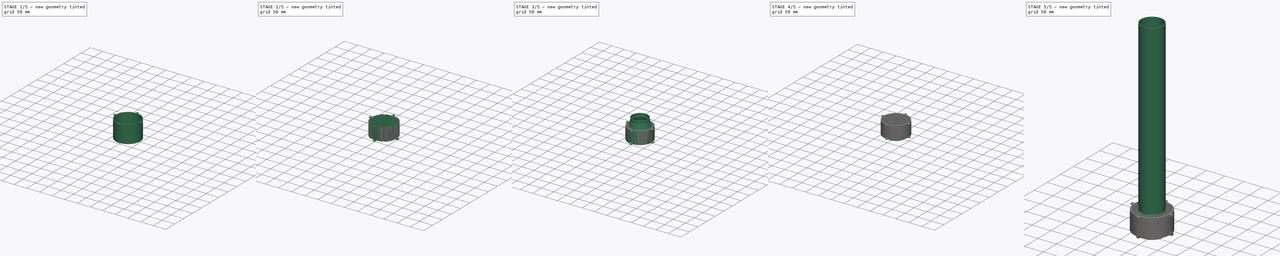
[diagram: build sequence overview — one tinted view per stage of 5, left to right]
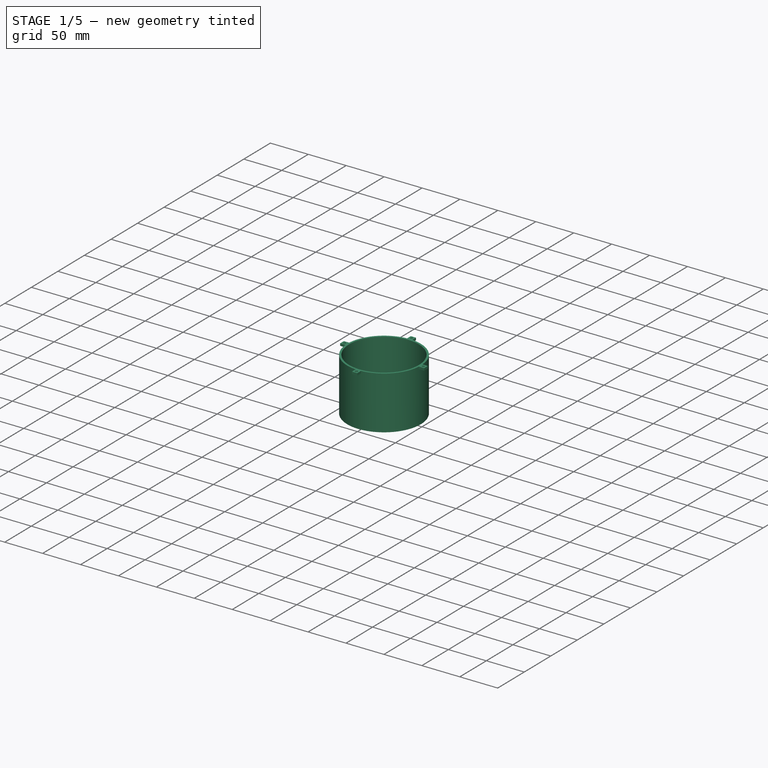
[diagram: stage 1 of 5 — iso view after this stage's code; geometry added in this stage tinted green]
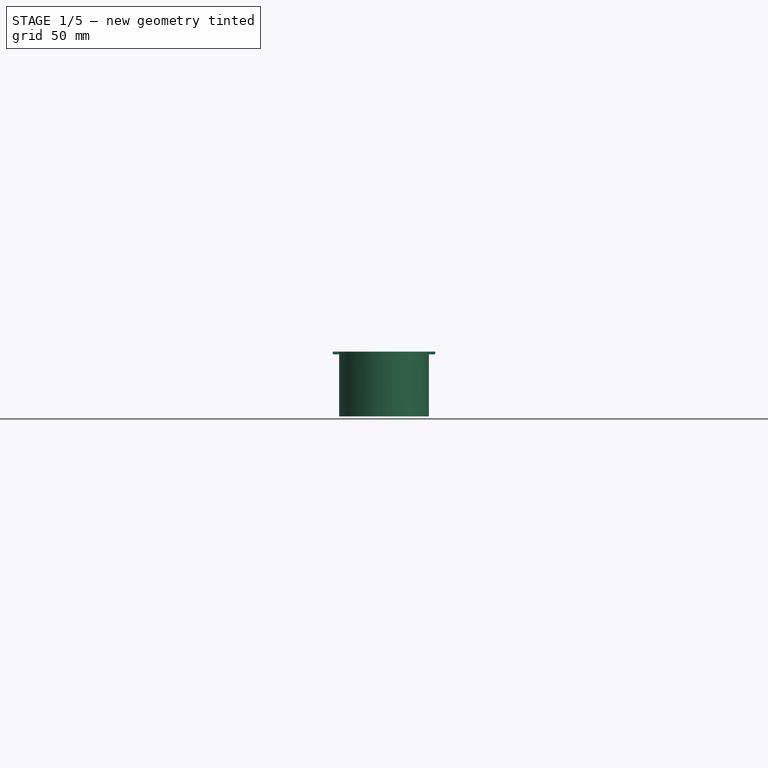
[diagram: stage 1 of 5 — front view after this stage's code; geometry added in this stage tinted green]
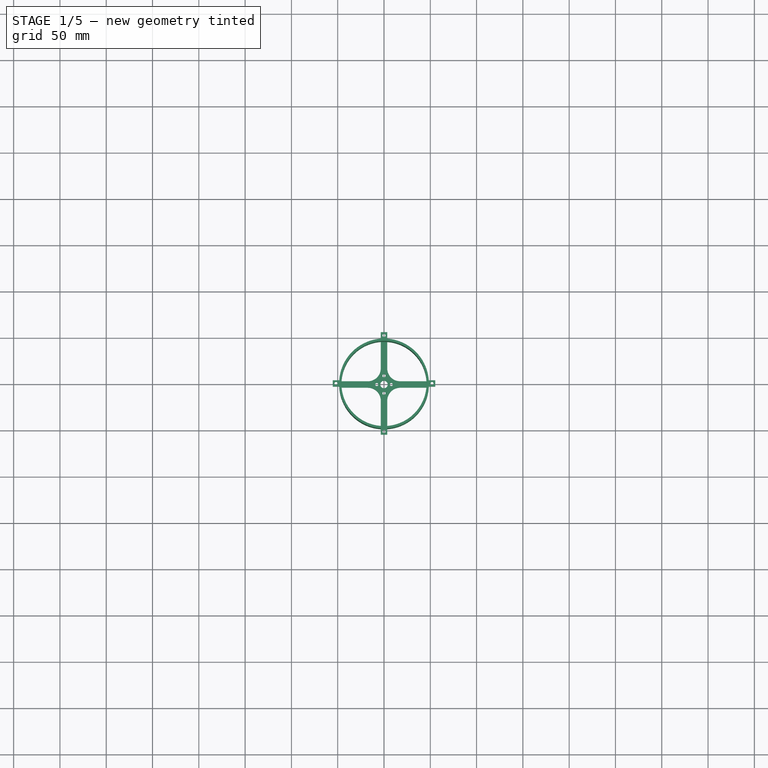
[diagram: stage 1 of 5 — top view after this stage's code; geometry added in this stage tinted green]
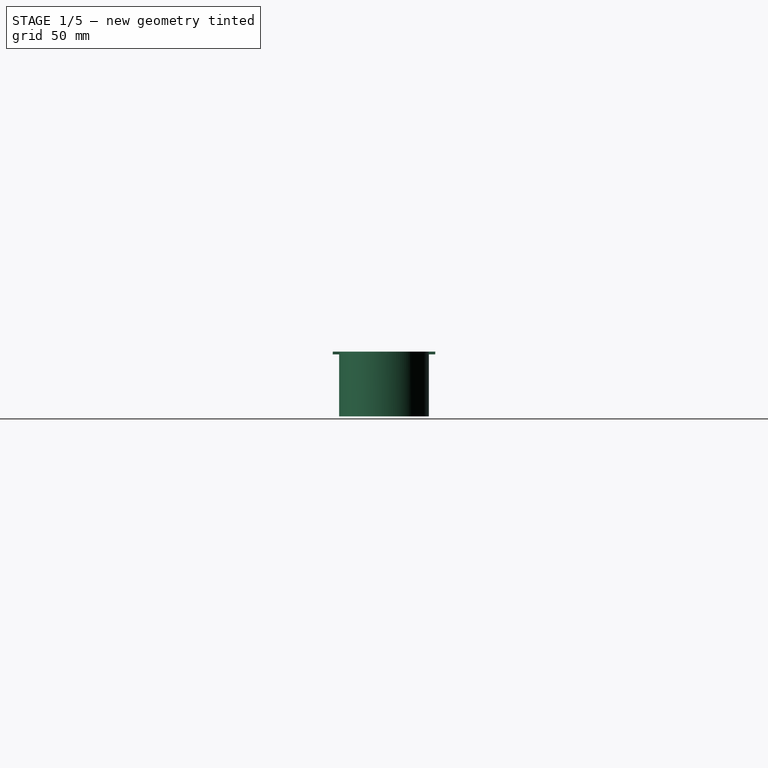
[diagram: stage 1 of 5 — right view after this stage's code; geometry added in this stage tinted green]
FCSTD DOCUMENT  (FreeCAD 0.19R24291 (Git))
Label: pilka_w_tubie
License: All rights reserved
LicenseURL: http://en.wikipedia.org/wiki/All_rights_reserved
objects: Part::Feature×34, Sketcher::SketchObject×20, PartDesign::Pad×9, PartDesign::PolarPattern×9, PartDesign::Pocket×8, PartDesign::Body×5, PartDesign::ShapeBinder×4, PartDesign::Fillet×4, App::DocumentObjectGroup×4, PartDesign::Revolution×3, PartDesign::Chamfer×3, PartDesign::LinearPattern×2, Spreadsheet::Sheet×1, PartDesign::Mirrored×1, PartDesign::MultiTransform×1
note: 130 computed .brp shape members not serialized (recipe doc carries the construction recipe); baked Part::Feature solids carry a one-line shape summary decoded from their .brp

FEATURE [Sketcher::SketchObject] Sketch
  FullyConstrained = true
  MapMode = 5
  Support = -> [XY_Plane]
  expr: Constraints[3] = <<Params>>.PropDiam + <<Params>>.PropTolerance + <<Params>>.PropChamberWallThickness
  expr: Constraints[1] = <<Params>>.PropDiam + <<Params>>.PropTolerance
  sketch-geometry (2):
    g0: Circle CenterX=0 CenterY=0 CenterZ=0 NormalX=0 NormalY=0 NormalZ=1 AngleXU=0 Radius=46
    g1: Circle CenterX=0 CenterY=0 CenterZ=0 NormalX=0 NormalY=0 NormalZ=1 AngleXU=0 Radius=48.5
  constraints (4):
    c: Coincident(g0,g-1)
    c: Diameter(g0) = 92
    c: Coincident(g1,g0)
    c: Diameter(g1) = 97
FEATURE [PartDesign::Pad] Pad
  Direction = (1,1,1)
  Length = 70
  Length2 = 100
  Profile = -> Sketch
  Type = 0
  expr: Length = <<Params>>.PropChamberHeight
FEATURE [Sketcher::SketchObject] Sketch001
  ExternalGeometry = -> [Pad]
  FullyConstrained = true
  MapMode = 5
  Support = -> [XY_Plane]
  expr: Constraints[39] = <<Params>>.PropDiam / 6
  sketch-geometry (40):
    g0: LineSegment StartX=-3.5 StartY=-3.5 StartZ=0 EndX=3.5 EndY=-3.5 EndZ=0
    g1: LineSegment StartX=3.5 StartY=-3.5 StartZ=0 EndX=3.5 EndY=3.5 EndZ=0
    g2: LineSegment StartX=3.5 StartY=3.5 StartZ=0 EndX=-3.5 EndY=3.5 EndZ=0
    g3: LineSegment StartX=-3.5 StartY=3.5 StartZ=0 EndX=-3.5 EndY=-3.5 EndZ=0
    g4: GeomPoint X=0 Y=46 Z=0
    g5: GeomPoint X=-46 Y=0 Z=0
    g6: GeomPoint X=0 Y=-46 Z=0
    g7: GeomPoint X=46 Y=0 Z=0
    g8: ArcOfCircle CenterX=1.086e-13 CenterY=4.04e-14 CenterZ=0 NormalX=0 NormalY=0 NormalZ=1 AngleXU=0 Radius=46 StartAngle=3.06543 EndAngle=3.21775
    g9: ArcOfCircle CenterX=-7.49e-14 CenterY=6.443e-13 CenterZ=0 NormalX=0 NormalY=0 NormalZ=1 AngleXU=0 Radius=46 StartAngle=1.49464 EndAngle=1.64696
    g10: ArcOfCircle CenterX=-1.371e-13 CenterY=4.24e-14 CenterZ=0 NormalX=0 NormalY=0 NormalZ=1 AngleXU=0 Radius=46 StartAngle=6.20702 EndAngle=6.35935
    g11: ArcOfCircle CenterX=9.4e-15 CenterY=-7.604e-13 CenterZ=0 NormalX=0 NormalY=0 NormalZ=1 AngleXU=0 Radius=46 StartAngle=4.63623 EndAngle=4.78855
    g12: LineSegment StartX=-3.5 StartY=3.5 StartZ=0 EndX=-17.5 EndY=3.5 EndZ=0
    g13: LineSegment StartX=-17.5 StartY=3.5 StartZ=0 EndX=-17.5 EndY=17.5 EndZ=0
    g14: LineSegment StartX=-17.5 StartY=17.5 StartZ=0 EndX=-3.5 EndY=17.5 EndZ=0
    g15: LineSegment StartX=-3.5 StartY=17.5 StartZ=0 EndX=-3.5 EndY=3.5 EndZ=0
    g16: ArcOfCircle CenterX=-17.5 CenterY=17.5 CenterZ=0 NormalX=0 NormalY=0 NormalZ=1 AngleXU=0 Radius=14 StartAngle=4.71239 EndAngle=6.28319
    g17: LineSegment StartX=3.5 StartY=3.5 StartZ=0 EndX=17.5 EndY=3.5 EndZ=0
    g18: LineSegment StartX=17.5 StartY=3.5 StartZ=0 EndX=17.5 EndY=17.5 EndZ=0
    g19: LineSegment StartX=17.5 StartY=17.5 StartZ=0 EndX=3.5 EndY=17.5 EndZ=0
    g20: LineSegment StartX=3.5 StartY=17.5 StartZ=0 EndX=3.5 EndY=3.5 EndZ=0
    g21: LineSegment StartX=3.5 StartY=-3.5 StartZ=0 EndX=17.5 EndY=-3.5 EndZ=0
    g22: LineSegment StartX=17.5 StartY=-3.5 StartZ=0 EndX=17.5 EndY=-17.5 EndZ=0
    g23: LineSegment StartX=17.5 StartY=-17.5 StartZ=0 EndX=3.5 EndY=-17.5 EndZ=0
    g24: LineSegment StartX=3.5 StartY=-17.5 StartZ=0 EndX=3.5 EndY=-3.5 EndZ=0
    g25: LineSegment StartX=-3.5 StartY=-3.5 StartZ=0 EndX=-17.5 EndY=-3.5 EndZ=0
    g26: LineSegment StartX=-17.5 StartY=-3.5 StartZ=0 EndX=-17.5 EndY=-17.5 EndZ=0
    g27: LineSegment StartX=-17.5 StartY=-17.5 StartZ=0 EndX=-3.5 EndY=-17.5 EndZ=0
    g28: LineSegment StartX=-3.5 StartY=-17.5 StartZ=0 EndX=-3.5 EndY=-3.5 EndZ=0
    g29: ArcOfCircle CenterX=17.5 CenterY=17.5 CenterZ=0 NormalX=0 NormalY=0 NormalZ=1 AngleXU=0 Radius=14 StartAngle=3.14159 EndAngle=4.71239
    g30: ArcOfCircle CenterX=17.5 CenterY=-17.5 CenterZ=0 NormalX=0 NormalY=0 NormalZ=1 AngleXU=0 Radius=14 StartAngle=1.5708 EndAngle=3.14159
    g31: ArcOfCircle CenterX=-17.5 CenterY=-17.5 CenterZ=0 NormalX=0 NormalY=0 NormalZ=1 AngleXU=0 Radius=14 StartAngle=0 EndAngle=1.5708
    g32: LineSegment StartX=-45.8667 StartY=3.5 StartZ=0 EndX=-17.5 EndY=3.5 EndZ=0
    g33: LineSegment StartX=-17.5 StartY=-3.5 StartZ=0 EndX=-45.8667 EndY=-3.5 EndZ=0
    g34: LineSegment StartX=-3.5 StartY=-17.5 StartZ=0 EndX=-3.5 EndY=-45.8667 EndZ=0
    g35: LineSegment StartX=3.5 StartY=-45.8667 StartZ=0 EndX=3.5 EndY=-17.5 EndZ=0
    g36: LineSegment StartX=17.5 StartY=-3.5 StartZ=0 EndX=45.8667 EndY=-3.5 EndZ=0
    g37: LineSegment StartX=45.8667 StartY=3.5 StartZ=0 EndX=17.5 EndY=3.5 EndZ=0
    g38: LineSegment StartX=-3.5 StartY=17.5 StartZ=0 EndX=-3.5 EndY=45.8667 EndZ=0
    g39: LineSegment StartX=3.5 StartY=45.8667 StartZ=0 EndX=3.5 EndY=17.5 EndZ=0
  constraints (106):
    c: Coincident(g0,g1)
    c: Coincident(g1,g2)
    c: Coincident(g2,g3)
    c: Coincident(g3,g0)
    c: Horizontal(g0)
    c: Vertical(g3)
    c: Distance(g2) = 7
    c: Equal(g3,g0)
    c: Symmetric(g2,g1,g-2)
    c: Symmetric(g1,g0,g-1)
    c: PointOnObject(g9,g-3)
    c: PointOnObject(g9,g-3)
    c: PointOnObject(g10,g-3)
    c: PointOnObject(g10,g-3)
    c: PointOnObject(g11,g-3)
    c: PointOnObject(g11,g-3)
    c: PointOnObject(g8,g-3)
    c: PointOnObject(g8,g-3)
    c: PointOnObject(g4,g-3)
    c: PointOnObject(g5,g-3)
    c: PointOnObject(g6,g-3)
    c: PointOnObject(g7,g-3)
    c: PointOnObject(g7,g-1)
    c: PointOnObject(g6,g-2)
    c: PointOnObject(g5,g-1)
    c: PointOnObject(g4,g-2)
    c: PointOnObject(g5,g8)
    c: PointOnObject(g4,g9)
    c: PointOnObject(g7,g10)
    c: PointOnObject(g6,g11)
    c: Coincident(g12,g13)
    c: Coincident(g13,g14)
    c: Coincident(g14,g15)
    c: Coincident(g15,g12)
    c: Horizontal(g12)
    c: Horizontal(g14)
    c: Vertical(g13)
    c: Vertical(g15)
    c: Coincident(g12,g2)
    c: Distance(g13) = 14
    c: Coincident(g16,g13)
    c: Coincident(g16,g14)
    c: Coincident(g16,g12)
    c: Coincident(g17,g18)
    c: Coincident(g18,g19)
    c: Coincident(g19,g20)
    c: Coincident(g20,g17)
    c: Horizontal(g17)
    c: Horizontal(g19)
    c: Vertical(g18)
    c: Vertical(g20)
    c: Coincident(g17,g1)
    c: Coincident(g21,g22)
    c: Coincident(g22,g23)
    c: Coincident(g23,g24)
    c: Coincident(g24,g21)
    c: Horizontal(g21)
    c: Horizontal(g23)
    c: Vertical(g22)
    c: Vertical(g24)
    c: Coincident(g21,g0)
    c: Coincident(g25,g26)
    c: Coincident(g26,g27)
    c: Coincident(g27,g28)
    c: Coincident(g28,g25)
    c: Horizontal(g25)
    c: Horizontal(g27)
    c: Vertical(g26)
    c: Vertical(g28)
    c: Coincident(g25,g0)
    c: Equal(g20,g15)
    c: Equal(g17,g21)
    c: Equal(g12,g25)
    c: Coincident(g29,g18)
    c: Coincident(g29,g19)
    c: Coincident(g29,g17)
    c: Coincident(g30,g22)
    c: Coincident(g30,g23)
    c: Coincident(g30,g21)
    c: Coincident(g31,g26)
    c: Coincident(g31,g27)
    c: Coincident(g31,g25)
    c: Coincident(g32,g8)
    c: Coincident(g32,g16)
    c: Horizontal(g32)
    c: Coincident(g33,g31)
    c: Coincident(g33,g8)
    c: Horizontal(g33)
    c: Coincident(g34,g31)
    c: Coincident(g34,g11)
    c: Vertical(g34)
    c: Coincident(g35,g11)
    c: Coincident(g35,g30)
    c: Vertical(g35)
    c: Coincident(g36,g30)
    c: Coincident(g36,g10)
    c: Horizontal(g36)
    c: Coincident(g37,g10)
    c: Coincident(g37,g29)
    c: Horizontal(g37)
    c: Coincident(g38,g16)
    c: Coincident(g38,g9)
    c: Vertical(g38)
    c: Coincident(g39,g9)
    c: Coincident(g39,g29)
    c: Vertical(g39)
FEATURE [PartDesign::Pad] Pad001
  BaseFeature = -> Pad
  Direction = (1,1,1)
  Length = 3
  Length2 = 100
  Profile = -> Sketch001
  Type = 0
FEATURE [Sketcher::SketchObject] Sketch002
  FullyConstrained = true
  MapMode = 5
  Placement = pos=(0,0,0) rot=(1,0,0;3.14159rad)
  Support = -> [Pad001]
  sketch-geometry (9):
    g0: LineSegment StartX=-9.5 StartY=-11.1 StartZ=0 EndX=9.5 EndY=-11.1 EndZ=0
    g1: LineSegment StartX=9.5 StartY=-11.1 StartZ=0 EndX=9.5 EndY=11.1 EndZ=0
    g2: LineSegment StartX=9.5 StartY=11.1 StartZ=0 EndX=-9.5 EndY=11.1 EndZ=0
    g3: LineSegment StartX=-9.5 StartY=11.1 StartZ=0 EndX=-9.5 EndY=-11.1 EndZ=0
    g4: Circle CenterX=-7.85 CenterY=0 CenterZ=0 NormalX=0 NormalY=0 NormalZ=1 AngleXU=0 Radius=1.65
    g5: Circle CenterX=7.85 CenterY=0 CenterZ=0 NormalX=0 NormalY=0 NormalZ=1 AngleXU=0 Radius=1.65
    g6: Circle CenterX=0 CenterY=9.45 CenterZ=0 NormalX=0 NormalY=0 NormalZ=1 AngleXU=0 Radius=1.65
    g7: Circle CenterX=0 CenterY=-9.45 CenterZ=0 NormalX=0 NormalY=0 NormalZ=1 AngleXU=0 Radius=1.65
    g8: Circle CenterX=0 CenterY=0 CenterZ=0 NormalX=0 NormalY=0 NormalZ=1 AngleXU=0 Radius=4
  constraints (24):
    c: Coincident(g0,g1)
    c: Coincident(g1,g2)
    c: Coincident(g2,g3)
    c: Coincident(g3,g0)
    c: Horizontal(g0)
    c: Vertical(g3)
    c: Symmetric(g2,g1,g-2)
    c: Symmetric(g1,g0,g-1)
    c: Distance(g1) = 22.2
    c: PointOnObject(g5,g-1)
    c: Tangent(g5,g1)
    c: Equal(g4,g5)
    c: Diameter(g5) = 3.3
    c: PointOnObject(g6,g-2)
    c: Tangent(g6,g2)
    c: PointOnObject(g7,g-2)
    c: Tangent(g7,g0)
    c: Equal(g6,g4)
    c: Equal(g4,g7)
    c: Distance(g2) = 19
    c: PointOnObject(g4,g-1)
    c: Tangent(g4,g3)
    c: Coincident(g8,g-1)
    c: Diameter(g8) = 8
FEATURE [PartDesign::Pocket] Pocket
  BaseFeature = -> Pad001
  Length = 5
  Length2 = 100
  Profile = -> Sketch002
  Type = 0
FEATURE [Sketcher::SketchObject] Sketch003
  ExternalGeometry = -> [Pocket]
  FullyConstrained = true
  MapMode = 5
  Placement = pos=(0,0,70) rot=(0,0,1;0rad)
  Support = -> [Pocket]
  sketch-geometry (4):
    g0: LineSegment StartX=-3.5 StartY=48.3735 StartZ=0 EndX=3.5 EndY=48.3735 EndZ=0
    g1: LineSegment StartX=3.5 StartY=48.3735 StartZ=0 EndX=3.5 EndY=55.3735 EndZ=0
    g2: LineSegment StartX=3.5 StartY=55.3735 StartZ=0 EndX=-3.5 EndY=55.3735 EndZ=0
    g3: LineSegment StartX=-3.5 StartY=55.3735 StartZ=0 EndX=-3.5 EndY=48.3735 EndZ=0
  constraints (11):
    c: Coincident(g0,g1)
    c: Coincident(g1,g2)
    c: Coincident(g2,g3)
    c: Coincident(g3,g0)
    c: Horizontal(g0)
    c: Vertical(g1)
    c: Vertical(g3)
    c: Symmetric(g2,g1,g-2)
    c: PointOnObject(g0,g-3)
    c: Equal(g2,g1)
    c: Distance(g1) = 7
FEATURE [PartDesign::Pad] Pad002
  BaseFeature = -> Pocket
  Direction = (0,0,-1)
  Length = 3
  Length2 = 100
  Profile = -> Sketch003
  Type = 0
  UseCustomVector = true
FEATURE [PartDesign::PolarPattern] PolarPattern
  Angle = 360
  Axis = -> Sketch003 [N_Axis]
  BaseFeature = -> Pad002
  Occurrences = 4
  Originals = -> [Pad002]
FEATURE [Sketcher::SketchObject] Sketch004
  ExternalGeometry = -> [PolarPattern]
  FullyConstrained = true
  MapMode = 5
  Placement = pos=(0,0,70) rot=(0,0,1;0rad)
  Support = -> [PolarPattern]
  sketch-geometry (4):
    g0: LineSegment StartX=-55.3735 StartY=3.5 StartZ=0 EndX=-48.3735 EndY=-3.5 EndZ=0
    g1: LineSegment StartX=-48.3735 StartY=3.5 StartZ=0 EndX=-55.3735 EndY=-3.5 EndZ=0
    g2: GeomPoint X=-51.8735 Y=4.1e-15 Z=0
    g3: Circle CenterX=-51.8735 CenterY=4.1e-15 CenterZ=0 NormalX=0 NormalY=0 NormalZ=1 AngleXU=0 Radius=1.65
  constraints (8):
    c: Coincident(g0,g-4)
    c: Coincident(g0,g-5)
    c: Coincident(g1,g-3)
    c: Coincident(g1,g-5)
    c: PointOnObject(g2,g0)
    c: PointOnObject(g2,g1)
    c: Coincident(g3,g2)
    c: Diameter(g3) = 3.3
FEATURE [PartDesign::Pocket] Pocket001
  BaseFeature = -> PolarPattern
  Length = 5
  Length2 = 100
  Profile = -> Sketch004
  Type = 0
FEATURE [PartDesign::PolarPattern] PolarPattern001
  Angle = 360
  Axis = -> Sketch004 [N_Axis]
  BaseFeature = -> Pocket001
  Occurrences = 4
  Originals = -> [Pocket001]
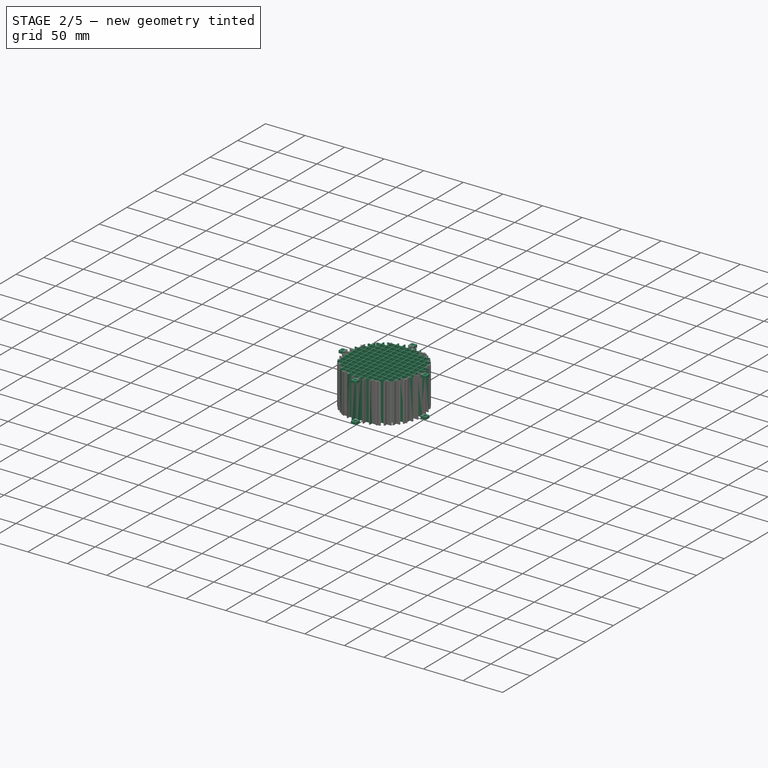
[diagram: stage 2 of 5 — iso view after this stage's code; geometry added in this stage tinted green]
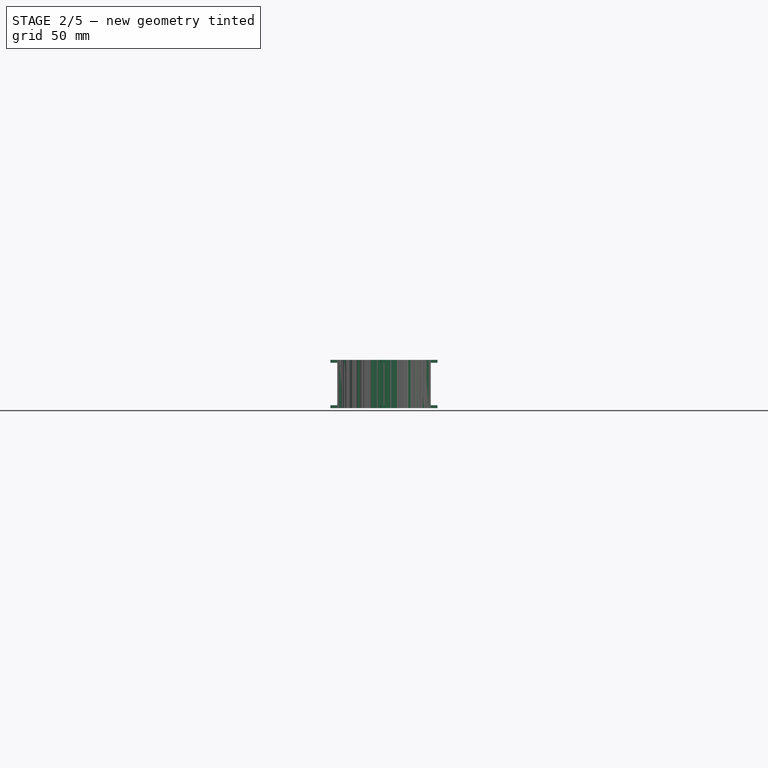
[diagram: stage 2 of 5 — front view after this stage's code; geometry added in this stage tinted green]
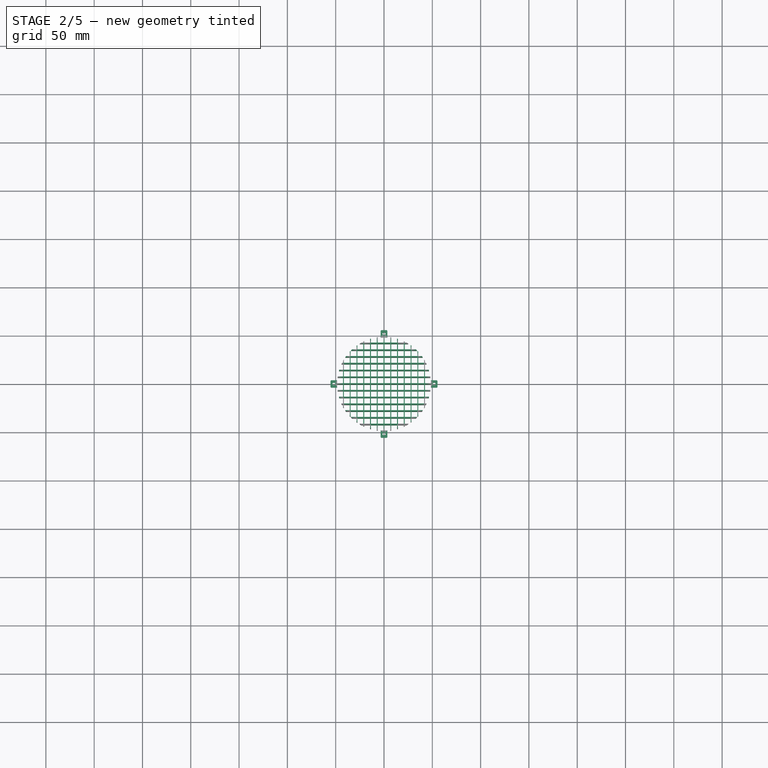
[diagram: stage 2 of 5 — top view after this stage's code; geometry added in this stage tinted green]
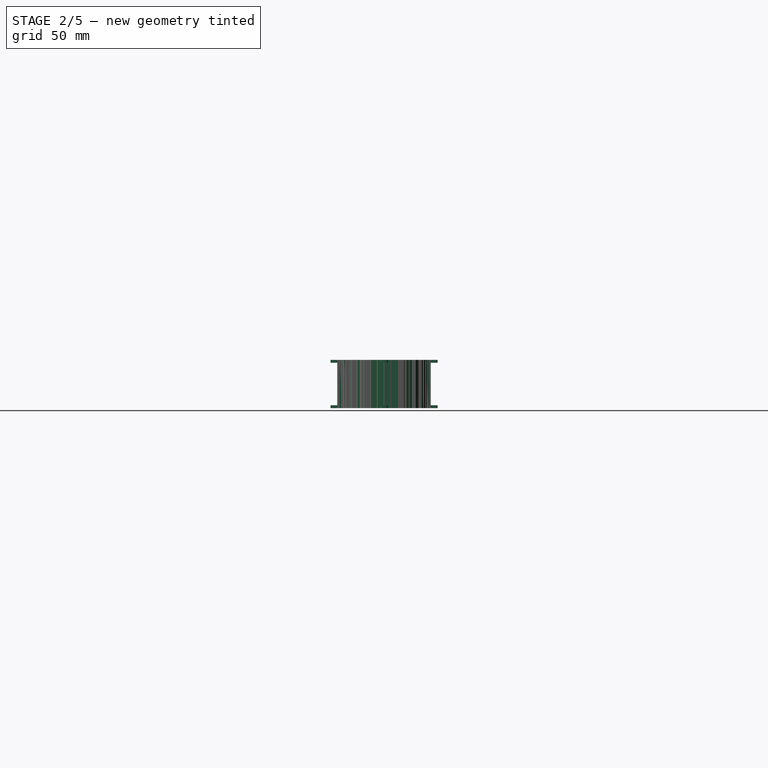
[diagram: stage 2 of 5 — right view after this stage's code; geometry added in this stage tinted green]
FEATURE [Part::Feature] Solid  label="98861A040_NO THREADS_Low-Strength Steel Threaded Rod"
  Placement = pos=(0,52,365) rot=(0,0,1;0rad)
  shape: bbox 3 x 3 x 1000 mm, 8 faces (baked)
FEATURE [Part::Feature] Solid001  label="98861A040_NO THREADS_Low-Strength Steel Threaded Rod001"
  Placement = pos=(-52,0,365) rot=(0,0,1;0rad)
  shape: bbox 3 x 3 x 1000 mm, 8 faces (baked)
FEATURE [Part::Feature] Solid002  label="98861A040_NO THREADS_Low-Strength Steel Threaded Rod002"
  Placement = pos=(0,-52,365) rot=(0,0,1;0rad)
  shape: bbox 3 x 3 x 1000 mm, 8 faces (baked)
FEATURE [Part::Feature] Solid003  label="98861A040_NO THREADS_Low-Strength Steel Threaded Rod003"
  Placement = pos=(52,0,365) rot=(0,0,1;0rad)
  shape: bbox 3 x 3 x 1000 mm, 8 faces (baked)
FEATURE [PartDesign::Fillet] Fillet
  Base = -> PolarPattern001 [Edge24,Edge55]
  BaseFeature = -> PolarPattern001
  Radius = 1
  SupportTransform = false
FEATURE [PartDesign::PolarPattern] PolarPattern005
  Angle = 360
  Axis = -> Z_Axis
  BaseFeature = -> Fillet
  Occurrences = 4
  Originals = -> [Fillet]
FEATURE [PartDesign::Body] Body001  label="tube_coupler"
  Group = -> [Sketch005,Revolution,Sketch007,Revolution001,Sketch008,Revolution002,PolarPattern002,Sketch009,Pocket002,PolarPattern003,ShapeBinder,Sketch010,Pocket003,PolarPattern004,Fillet001,PolarPattern006,Chamfer]
  Origin = -> Origin001
  Placement = pos=(0,0,120) rot=(0,0,1;0rad)
  Tip = -> Chamfer
FEATURE [App::DocumentObjectGroup] Group  label="Threaded rods"
  Group = -> [Solid,Solid001,Solid002,Solid003]
FEATURE [PartDesign::Chamfer] Chamfer001
  Angle = 45
  Base = -> PolarPattern005 [Edge133,Edge134,Edge136,Edge137]
  BaseFeature = -> PolarPattern005
  ChamferType = 0
  FlipDirection = false
  Size = 1.5
  Size2 = 1
  SupportTransform = false
FEATURE [PartDesign::Body] Body003  label="TOF_cap"
  Group = -> [ShapeBinder001,Sketch011,Pad004,Sketch012,Pad005,Chamfer002,ShapeBinder002,Sketch013,Pad006,Sketch014,Pocket004,Sketch015,Pocket005,Mirrored,Fillet002,Fillet003]
  Origin = -> Origin003
  Placement = pos=(0,0,690) rot=(0,0,1;0rad)
  Tip = -> Fillet003
FEATURE [Part::Feature] Feature  label="vl53l0x001"
  Placement = pos=(0,1,697) rot=(-1,0,0;1.5708rad)
  shape: bbox 25 x 11 x 11.3 mm, 248 faces, 7 solids (baked)
FEATURE [Part::Feature] Solid004  label="90592A009_NO THREADS_Steel Hex Nut"
  Placement = pos=(0,-52,66) rot=(1,0,0;1.5708rad)
  shape: bbox 6.352 x 6.352 x 2.401 mm, 24 faces (baked)
FEATURE [Part::Feature] Solid005  label="90592A009_NO THREADS_Steel Hex Nut001"
  Placement = pos=(52,-2.8e-14,66) rot=(1,0,0;1.5708rad)
  shape: bbox 6.352 x 6.352 x 2.401 mm, 24 faces (baked)
FEATURE [Part::Feature] Solid006  label="90592A009_NO THREADS_Steel Hex Nut002"
  Placement = pos=(0,52,66) rot=(1,0,0;1.5708rad)
  shape: bbox 6.352 x 6.352 x 2.401 mm, 24 faces (baked)
FEATURE [Part::Feature] Solid007  label="90592A009_NO THREADS_Steel Hex Nut003"
  Placement = pos=(-52,-2.8e-14,66) rot=(1,0,0;1.5708rad)
  shape: bbox 6.352 x 6.352 x 2.401 mm, 24 faces (baked)
FEATURE [Part::Feature] Solid008  label="90592A009_NO THREADS_Steel Hex Nut004"
  Placement = pos=(0,-52,74) rot=(1,0,0;1.5708rad)
  shape: bbox 6.352 x 6.352 x 2.401 mm, 24 faces (baked)
FEATURE [Part::Feature] Solid009  label="90592A009_NO THREADS_Steel Hex Nut005"
  Placement = pos=(52,-2.6e-14,74) rot=(1,0,0;1.5708rad)
  shape: bbox 6.352 x 6.352 x 2.401 mm, 24 faces (baked)
FEATURE [Part::Feature] Solid010  label="90592A009_NO THREADS_Steel Hex Nut006"
  Placement = pos=(0,52,74) rot=(1,0,0;1.5708rad)
  shape: bbox 6.352 x 6.352 x 2.401 mm, 24 faces (baked)
FEATURE [Part::Feature] Solid011  label="90592A009_NO THREADS_Steel Hex Nut007"
  Placement = pos=(-52,-2.6e-14,74) rot=(1,0,0;1.5708rad)
  shape: bbox 6.352 x 6.352 x 2.401 mm, 24 faces (baked)
FEATURE [Part::Feature] Solid012  label="90592A009_NO THREADS_Steel Hex Nut008"
  Placement = pos=(0,-52,692) rot=(1,0,0;1.5708rad)
  shape: bbox 6.352 x 6.352 x 2.401 mm, 24 faces (baked)
FEATURE [Part::Feature] Solid013  label="90592A009_NO THREADS_Steel Hex Nut009"
  Placement = pos=(52,1.11e-13,692) rot=(1,0,0;1.5708rad)
  shape: bbox 6.352 x 6.352 x 2.401 mm, 24 faces (baked)
FEATURE [Part::Feature] Solid014  label="90592A009_NO THREADS_Steel Hex Nut010"
  Placement = pos=(0,52,692) rot=(1,0,0;1.5708rad)
  shape: bbox 6.352 x 6.352 x 2.401 mm, 24 faces (baked)
FEATURE [Part::Feature] Solid015  label="90592A009_NO THREADS_Steel Hex Nut011"
  Placement = pos=(-52,1.11e-13,692) rot=(1,0,0;1.5708rad)
  shape: bbox 6.352 x 6.352 x 2.401 mm, 24 faces (baked)
FEATURE [Part::Feature] Solid016  label="90592A009_NO THREADS_Steel Hex Nut012"
  Placement = pos=(0,-52,697) rot=(1,0,0;1.5708rad)
  shape: bbox 6.352 x 6.352 x 2.401 mm, 24 faces (baked)
FEATURE [Part::Feature] Solid017  label="90592A009_NO THREADS_Steel Hex Nut013"
  Placement = pos=(0,52,697) rot=(1,0,0;1.5708rad)
  shape: bbox 6.352 x 6.352 x 2.401 mm, 24 faces (baked)
FEATURE [Part::Feature] Solid018  label="90592A009_NO THREADS_Steel Hex Nut014"
  Placement = pos=(52,1.12e-13,697) rot=(1,0,0;1.5708rad)
  shape: bbox 6.352 x 6.352 x 2.401 mm, 24 faces (baked)
FEATURE [Part::Feature] Solid019  label="90592A009_NO THREADS_Steel Hex Nut015"
  Placement = pos=(-52,1.12e-13,697) rot=(1,0,0;1.5708rad)
  shape: bbox 6.352 x 6.352 x 2.401 mm, 24 faces (baked)
FEATURE [Part::Feature] Solid020  label="91292A113_18-8 Stainless Steel Socket Head Screw"
  Placement = pos=(-10,1,687) rot=(1,0,0;3.14159rad)
  shape: bbox 5.501 x 5.501 x 13.02 mm, 109 faces (baked)
FEATURE [Part::Feature] Solid021  label="91292A113_18-8 Stainless Steel Socket Head Screw001"
  Placement = pos=(10,1,687) rot=(1,0,0;3.14159rad)
  shape: bbox 5.501 x 5.501 x 13.02 mm, 109 faces (baked)
FEATURE [App::DocumentObjectGroup] Group002  label="Bolts"
  Group = -> [Solid020,Solid021]
FEATURE [Part::Feature] Solid022  label="90592A009_NO THREADS_Steel Hex Nut016"
  Placement = pos=(-10,1,692) rot=(1,0,0;1.5708rad)
  shape: bbox 6.352 x 6.352 x 2.401 mm, 24 faces (baked)
FEATURE [Part::Feature] Solid023  label="90592A009_NO THREADS_Steel Hex Nut017"
  Placement = pos=(10,1,692) rot=(1,0,0;1.5708rad)
  shape: bbox 6.352 x 6.352 x 2.401 mm, 24 faces (baked)
FEATURE [Part::Feature] Solid024  label="Motor_BLDC_2212,6T_2200KV"
  Placement = pos=(0,0,2) rot=(1,0,0;1.5708rad)
  shape: bbox 27.9 x 27.9 x 40 mm, 170 faces (baked)
FEATURE [PartDesign::ShapeBinder] ShapeBinder003
  Support = -> [Chamfer001]
  TraceSupport = false
FEATURE [Sketcher::SketchObject] Sketch016
  ExternalGeometry = -> [ShapeBinder003]
  FullyConstrained = false
  MapMode = 5
  Support = -> [XY_Plane004]
  sketch-geometry (28):
    g0: ArcOfCircle CenterX=-3.3e-15 CenterY=0 CenterZ=0 NormalX=0 NormalY=0 NormalZ=1 AngleXU=0 Radius=48.5 StartAngle=1.64302 EndAngle=3.06936
    g1: ArcOfCircle CenterX=-3.3e-15 CenterY=0 CenterZ=0 NormalX=0 NormalY=0 NormalZ=1 AngleXU=0 Radius=48.5 StartAngle=0.0722277 EndAngle=1.49857
    g2: ArcOfCircle CenterX=-3.3e-15 CenterY=0 CenterZ=0 NormalX=0 NormalY=0 NormalZ=1 AngleXU=0 Radius=48.5 StartAngle=4.78462 EndAngle=6.21096
    g3: ArcOfCircle CenterX=-3.3e-15 CenterY=0 CenterZ=0 NormalX=0 NormalY=0 NormalZ=1 AngleXU=0 Radius=48.5 StartAngle=3.21382 EndAngle=4.64016
    g4: Circle CenterX=51.8735 CenterY=0 CenterZ=0 NormalX=0 NormalY=0 NormalZ=1 AngleXU=0 Radius=1.65
    g5: LineSegment StartX=48.3735 StartY=3.5 StartZ=0 EndX=54.3735 EndY=3.5 EndZ=0
    g6: LineSegment StartX=55.3735 StartY=2.5 StartZ=0 EndX=55.3735 EndY=-2.5 EndZ=0
    g7: LineSegment StartX=54.3735 StartY=-3.5 StartZ=0 EndX=48.3735 EndY=-3.5 EndZ=0
    g8: ArcOfCircle CenterX=54.3735 CenterY=2.5 CenterZ=0 NormalX=0 NormalY=0 NormalZ=1 AngleXU=0 Radius=1 StartAngle=1.2e-14 EndAngle=1.5708
    g9: ArcOfCircle CenterX=54.3735 CenterY=-2.5 CenterZ=0 NormalX=0 NormalY=0 NormalZ=1 AngleXU=0 Radius=1 StartAngle=4.71239 EndAngle=6.28319
    g10: Circle CenterX=0 CenterY=51.8735 CenterZ=0 NormalX=0 NormalY=0 NormalZ=1 AngleXU=0 Radius=1.65
    g11: LineSegment StartX=-3.5 StartY=54.3735 StartZ=0 EndX=-3.5 EndY=48.3735 EndZ=0
    g12: LineSegment StartX=-2.5 StartY=55.3735 StartZ=0 EndX=2.5 EndY=55.3735 EndZ=0
    g13: LineSegment StartX=3.5 StartY=54.3735 StartZ=0 EndX=3.5 EndY=48.3735 EndZ=0
    g14: ArcOfCircle CenterX=-2.5 CenterY=54.3735 CenterZ=0 NormalX=0 NormalY=0 NormalZ=1 AngleXU=0 Radius=1 StartAngle=1.5708 EndAngle=3.14159
    g15: ArcOfCircle CenterX=2.5 CenterY=54.3735 CenterZ=0 NormalX=0 NormalY=0 NormalZ=1 AngleXU=0 Radius=1 StartAngle=0 EndAngle=1.5708
    g16: Circle CenterX=-51.8735 CenterY=0 CenterZ=0 NormalX=0 NormalY=0 NormalZ=1 AngleXU=0 Radius=1.65
    g17: ArcOfCircle CenterX=-54.3735 CenterY=2.5 CenterZ=0 NormalX=0 NormalY=0 NormalZ=1 AngleXU=0 Radius=1 StartAngle=1.5708 EndAngle=3.14159
    g18: ArcOfCircle CenterX=-54.3735 CenterY=-2.5 CenterZ=0 NormalX=0 NormalY=0 NormalZ=1 AngleXU=0 Radius=1 StartAngle=3.14159 EndAngle=4.71239
    g19: LineSegment StartX=-55.3735 StartY=2.5 StartZ=0 EndX=-55.3735 EndY=-2.5 EndZ=0
    g20: LineSegment StartX=-54.3735 StartY=-3.5 StartZ=0 EndX=-48.3735 EndY=-3.5 EndZ=0
    g21: LineSegment StartX=-54.3735 StartY=3.5 StartZ=0 EndX=-48.3735 EndY=3.5 EndZ=0
    g22: Circle CenterX=0 CenterY=-51.8735 CenterZ=0 NormalX=0 NormalY=0 NormalZ=1 AngleXU=0 Radius=1.65
    g23: LineSegment StartX=-3.5 StartY=-48.3735 StartZ=0 EndX=-3.5 EndY=-54.3735 EndZ=0
    g24: LineSegment StartX=-2.5 StartY=-55.3735 StartZ=0 EndX=2.5 EndY=-55.3735 EndZ=0
    g25: LineSegment StartX=3.5 StartY=-54.3735 StartZ=0 EndX=3.5 EndY=-48.3735 EndZ=0
    g26: ArcOfCircle CenterX=2.5 CenterY=-54.3735 CenterZ=0 NormalX=0 NormalY=0 NormalZ=1 AngleXU=0 Radius=1 StartAngle=4.71239 EndAngle=6.28319
    g27: ArcOfCircle CenterX=-2.5 CenterY=-54.3735 CenterZ=0 NormalX=0 NormalY=0 NormalZ=1 AngleXU=0 Radius=1 StartAngle=3.14159 EndAngle=4.71239
  constraints (64):
    c: Coincident(g0,g-32)
    c: Coincident(g0,g-4)
    c: Coincident(g1,g-10)
    c: Coincident(g1,g-11)
    c: Coincident(g2,g-17)
    c: Coincident(g2,g-18)
    c: Coincident(g3,g-26)
    c: Coincident(g3,g-28)
    c: Coincident(g4,g-16)
    c: Equal(g4,g-16)
    c: Coincident(g5,g1)
    c: Coincident(g5,g-11)
    c: Coincident(g6,g-13)
    c: Coincident(g6,g-14)
    c: Coincident(g7,g-15)
    c: Coincident(g7,g2)
    c: Coincident(g8,g-34)
    c: Coincident(g8,g5)
    c: Coincident(g8,g6)
    c: Coincident(g9,g-14)
    c: Coincident(g9,g6)
    c: Coincident(g9,g7)
    c: Coincident(g10,g-9)
    c: Equal(g10,g-9)
    c: Coincident(g11,g-5)
    c: Coincident(g11,g0)
    c: Coincident(g12,g-6)
    c: Coincident(g12,g-35)
    c: Coincident(g13,g-35)
    c: Coincident(g13,g1)
    c: Coincident(g14,g-5)
    c: Coincident(g14,g11)
    c: Coincident(g14,g12)
    c: Coincident(g15,g-35)
    c: Coincident(g15,g12)
    c: Coincident(g15,g13)
    c: Coincident(g16,g-27)
    c: Equal(g16,g-27)
    c: Coincident(g17,g-31)
    c: Coincident(g17,g-31)
    c: Coincident(g17,g-32)
    c: Coincident(g18,g-29)
    c: Coincident(g18,g-29)
    c: Coincident(g18,g-30)
    c: Coincident(g19,g17)
    c: Coincident(g19,g18)
    c: Coincident(g20,g18)
    c: Coincident(g20,g3)
    c: Coincident(g21,g17)
    c: Coincident(g21,g0)
    c: Coincident(g22,g-37)
    c: Equal(g22,g-37)
    c: Coincident(g23,g3)
    c: Coincident(g23,g-25)
    c: Coincident(g24,g-24)
    c: Coincident(g24,g-36)
    c: Coincident(g25,g-36)
    c: Coincident(g25,g2)
    c: Coincident(g26,g-36)
    c: Coincident(g26,g24)
    c: Coincident(g26,g25)
    c: Coincident(g27,g-24)
    c: Coincident(g27,g23)
    c: Coincident(g27,g24)
FEATURE [PartDesign::Pad] Pad007
  Direction = (1,1,1)
  Length = 50
  Length2 = 100
  Profile = -> Sketch016
  Type = 0
FEATURE [Sketcher::SketchObject] Sketch017
  ExternalGeometry = -> [Pad007]
  FullyConstrained = true
  MapMode = 5
  Placement = pos=(3.5,6.7e-15,0) rot=(0.57735,0.57735,0.57735;2.0944rad)
  Support = -> [Pad007]
  sketch-geometry (6):
    g0: LineSegment StartX=55.3735 StartY=50 StartZ=0 EndX=55.3735 EndY=47 EndZ=0
    g1: LineSegment StartX=55.3735 StartY=-6e-15 StartZ=0 EndX=55.3735 EndY=3 EndZ=0
    g2: LineSegment StartX=55.3735 StartY=47 StartZ=0 EndX=48.3735 EndY=47 EndZ=0
    g3: LineSegment StartX=48.3735 StartY=47 StartZ=0 EndX=48.3735 EndY=3 EndZ=0
    g4: LineSegment StartX=48.3735 StartY=3 StartZ=0 EndX=55.3735 EndY=3 EndZ=0
    g5: LineSegment StartX=55.3735 StartY=3 StartZ=0 EndX=55.3735 EndY=47 EndZ=0
  constraints (16):
    c: Coincident(g0,g-4)
    c: Coincident(g1,g-4)
    c: Equal(g1,g0)
    c: Distance(g0) = 3
    c: PointOnObject(g0,g-4)
    c: PointOnObject(g1,g-4)
    c: Coincident(g2,g3)
    c: Coincident(g3,g4)
    c: Coincident(g4,g5)
    c: Coincident(g5,g2)
    c: Horizontal(g2)
    c: Horizontal(g4)
    c: Vertical(g3)
    c: Coincident(g2,g0)
    c: PointOnObject(g3,g-3)
    c: Coincident(g4,g1)
FEATURE [PartDesign::Pocket] Pocket006
  BaseFeature = -> Pad007
  Length = 10
  Length2 = 100
  Profile = -> Sketch017
  Type = 0
FEATURE [PartDesign::PolarPattern] PolarPattern007
  Angle = 360
  Axis = -> Z_Axis004
  BaseFeature = -> Pocket006
  Occurrences = 4
  Originals = -> [Pocket006]
FEATURE [Sketcher::SketchObject] Sketch018
  ExternalGeometry = -> [PolarPattern007]
  FullyConstrained = true
  MapMode = 5
  Placement = pos=(0,0,50) rot=(0,0,1;0rad)
  Support = -> [PolarPattern007]
  sketch-geometry (8):
    g0: LineSegment StartX=48.3735 StartY=-3.5 StartZ=0 EndX=-48.3735 EndY=-3.5 EndZ=0
    g1: LineSegment StartX=-3.5 StartY=48.3735 StartZ=0 EndX=-3.5 EndY=-48.3735 EndZ=0
    g2: LineSegment StartX=3.5 StartY=48.3735 StartZ=0 EndX=3.5 EndY=-48.3735 EndZ=0
    g3: LineSegment StartX=0.5 StartY=0.5 StartZ=0 EndX=6.5 EndY=0.5 EndZ=0
    g4: LineSegment StartX=6.5 StartY=0.5 StartZ=0 EndX=6.5 EndY=6.5 EndZ=0
    g5: LineSegment StartX=6.5 StartY=6.5 StartZ=0 EndX=0.5 EndY=6.5 EndZ=0
    g6: LineSegment StartX=0.5 StartY=6.5 StartZ=0 EndX=0.5 EndY=0.5 EndZ=0
    g7: LineSegment StartX=-48.3735 StartY=3.5 StartZ=0 EndX=48.3735 EndY=3.5 EndZ=0
  constraints (18):
    c: Coincident(g0,g-6)
    c: Coincident(g0,g-4)
    c: Coincident(g1,g-9)
    c: Coincident(g1,g-8)
    c: Coincident(g2,g-10)
    c: Coincident(g2,g-7)
    c: Coincident(g3,g4)
    c: Coincident(g4,g5)
    c: Coincident(g5,g6)
    c: Coincident(g6,g3)
    c: Horizontal(g3)
    c: Vertical(g6)
    c: Equal(g5,g4)
    c: Symmetric(g5,g4,g2)
    c: Distance(g6) = 6
    c: Coincident(g7,g-3)
    c: Coincident(g7,g-5)
    c: Symmetric(g4,g3,g7)
FEATURE [PartDesign::Pocket] Pocket007
  BaseFeature = -> PolarPattern007
  Length = 100
  Length2 = 100
  Profile = -> Sketch018
  Type = 0
FEATURE [PartDesign::LinearPattern] LinearPattern
  Direction = -> Sketch018 [H_Axis]
  Length = 42
  Occurrences = 7
FEATURE [PartDesign::LinearPattern] LinearPattern001
  Direction = -> Y_Axis004
  Length = 42
  Occurrences = 7
FEATURE [PartDesign::PolarPattern] PolarPattern008
  Angle = 360
  Axis = -> Sketch018 [N_Axis]
  Occurrences = 4
FEATURE [PartDesign::MultiTransform] MultiTransform
  BaseFeature = -> Pocket007
  Originals = -> [Pocket007]
  Transformations = -> [LinearPattern,LinearPattern001,PolarPattern008]
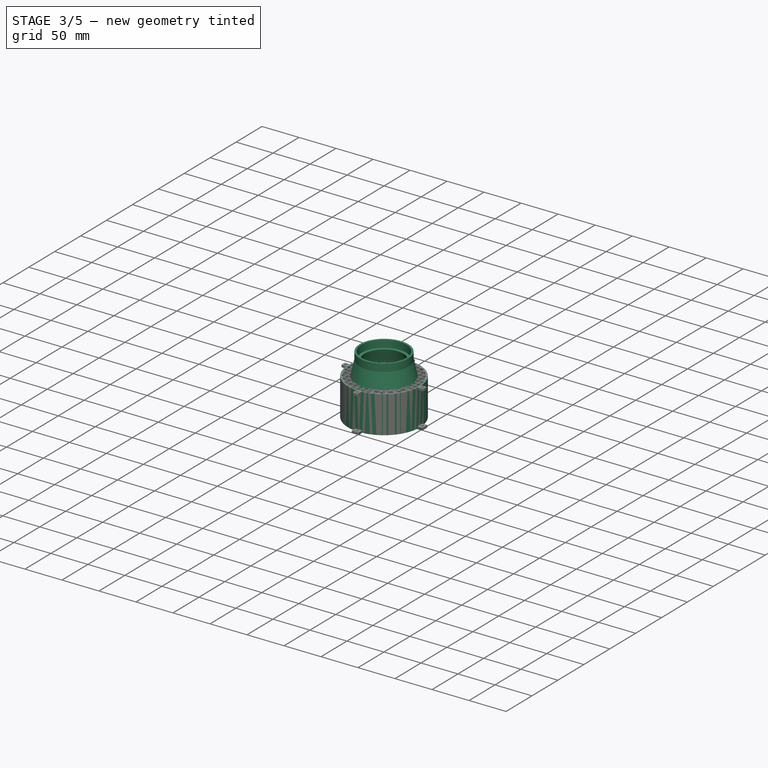
[diagram: stage 3 of 5 — iso view after this stage's code; geometry added in this stage tinted green]
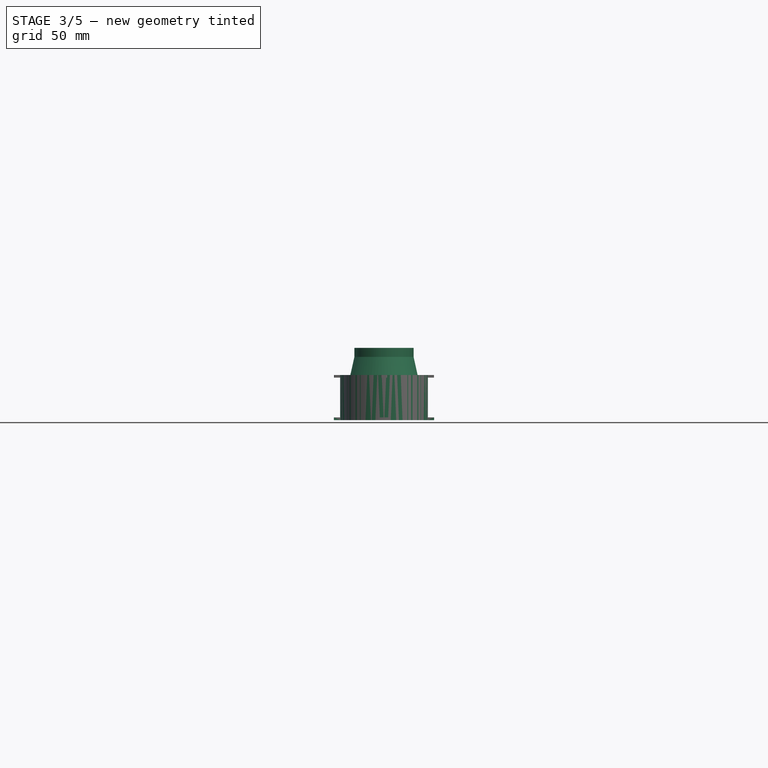
[diagram: stage 3 of 5 — front view after this stage's code; geometry added in this stage tinted green]
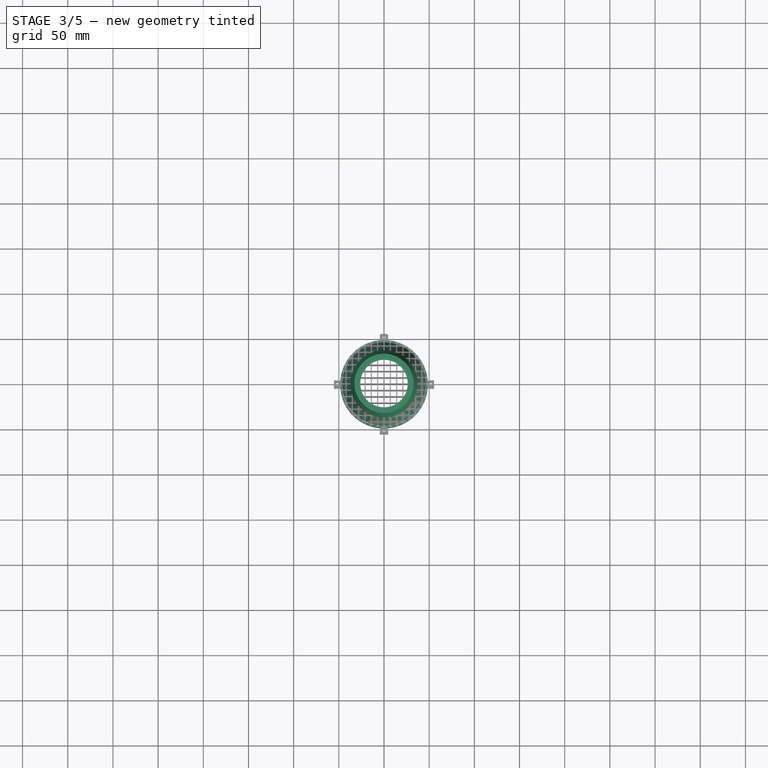
[diagram: stage 3 of 5 — top view after this stage's code; geometry added in this stage tinted green]
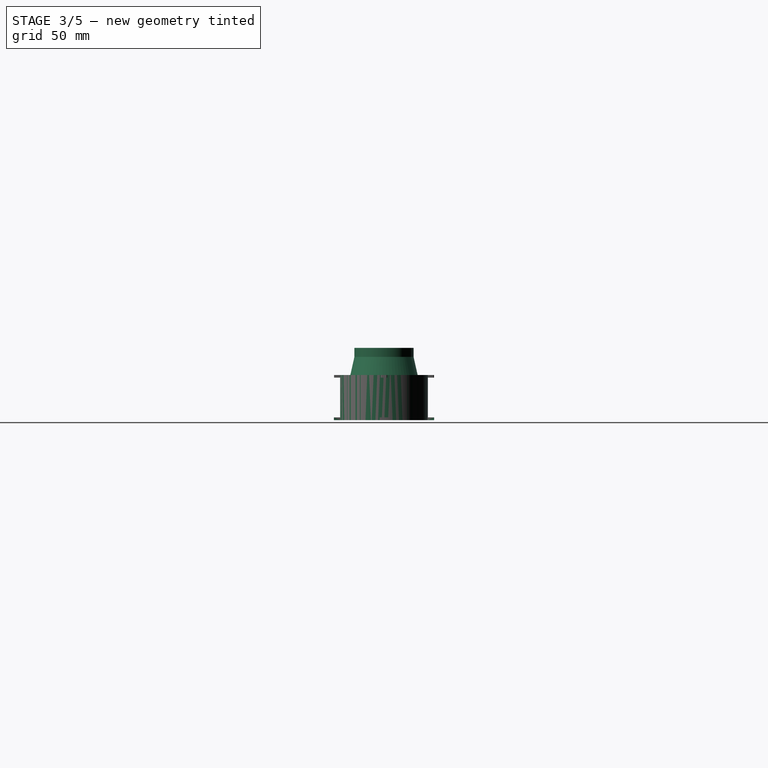
[diagram: stage 3 of 5 — right view after this stage's code; geometry added in this stage tinted green]
FEATURE [PartDesign::Body] Body002  label="tube"
  Group = -> [Sketch006,Pad003]
  Origin = -> Origin002
  Placement = pos=(0,0,190) rot=(0,0,1;0rad)
  Tip = -> Pad003
FEATURE [PartDesign::Revolution] Revolution
  Angle = 360
  Axis = (0,-2e-16,1)
  Base = (0,0,0)
  Placement = pos=(0,0,0) rot=(1,0,0;1.5708rad)
  Profile = -> Sketch005
  ReferenceAxis = -> Sketch005 [V_Axis]
FEATURE [Sketcher::SketchObject] Sketch007
  ExternalGeometry = -> [Revolution]
  FullyConstrained = true
  MapMode = 5
  Placement = pos=(0,0,0) rot=(1,0,0;1.5708rad)
  Support = -> [XZ_Plane001]
  expr: Constraints[2] = (<<Params>>.TubeOuterDiam + <<Params>>.Tolerances) / 2
  expr: Constraints[6] = <<Params>>.CouplerTubeHoldingRimHeight
  sketch-geometry (5):
    g0: LineSegment StartX=0 StartY=70 StartZ=0 EndX=-30.25 EndY=70 EndZ=0
    g1: LineSegment StartX=-32.75 StartY=70 StartZ=0 EndX=-32.75 EndY=80 EndZ=0
    g2: LineSegment StartX=-32.75 StartY=70 StartZ=0 EndX=-30.25 EndY=70 EndZ=0
    g3: LineSegment StartX=-32.75 StartY=80 StartZ=0 EndX=-30.25 EndY=80 EndZ=0
    g4: LineSegment StartX=-30.25 StartY=80 StartZ=0 EndX=-30.25 EndY=70 EndZ=0
  constraints (14):
    c: PointOnObject(g0,g-2)
    c: Horizontal(g0)
    c: Distance(g0) = 30.25
    c: PointOnObject(g0,g-3)
    c: Coincident(g1,g-3)
    c: Vertical(g1)
    c: Distance(g1) = 10
    c: Coincident(g2,g1)
    c: Coincident(g2,g0)
    c: Coincident(g3,g1)
    c: Coincident(g4,g3)
    c: Coincident(g4,g2)
    c: Perpendicular(g1,g3)
    c: Perpendicular(g2,g4)
FEATURE [PartDesign::Revolution] Revolution001
  Angle = 360
  Axis = (0,-2e-16,1)
  Base = (0,0,0)
  BaseFeature = -> Revolution
  Placement = pos=(0,0,0) rot=(1,0,0;1.5708rad)
  Profile = -> Sketch007
  ReferenceAxis = -> Sketch007 [V_Axis]
FEATURE [Sketcher::SketchObject] Sketch008
  ExternalGeometry = -> [Revolution001]
  FullyConstrained = true
  MapMode = 5
  Placement = pos=(0,0,0) rot=(1,0,0;1.5708rad)
  Support = -> [XZ_Plane001]
  sketch-geometry (4):
    g0: LineSegment StartX=-48.5 StartY=0 StartZ=0 EndX=-55.5 EndY=0 EndZ=0
    g1: LineSegment StartX=-55.5 StartY=0 StartZ=0 EndX=-55.5 EndY=3 EndZ=0
    g2: LineSegment StartX=-55.5 StartY=3 StartZ=0 EndX=-47.825 EndY=3 EndZ=0
    g3: LineSegment StartX=-47.825 StartY=3 StartZ=0 EndX=-48.5 EndY=0 EndZ=0
  constraints (11):
    c: Coincident(g0,g-3)
    c: Coincident(g1,g0)
    c: Coincident(g2,g1)
    c: Coincident(g3,g2)
    c: Coincident(g3,g0)
    c: Parallel(g2,g0)
    c: Distance(g1) = 3
    c: Distance(g0) = 7
    c: Perpendicular(g0,g1)
    c: PointOnObject(g2,g-3)
    c: PointOnObject(g0,g-1)
FEATURE [PartDesign::Revolution] Revolution002
  Angle = 10
  Axis = (-3e-16,3e-16,1)
  Base = (0,0,0)
  BaseFeature = -> Revolution001
  Midplane = true
  Placement = pos=(0,0,0) rot=(1,0,0;1.5708rad)
  Profile = -> Sketch008
  ReferenceAxis = -> Z_Axis001
FEATURE [PartDesign::PolarPattern] PolarPattern002
  Angle = 360
  Axis = -> Z_Axis001
  BaseFeature = -> Revolution002
  Occurrences = 4
  Originals = -> [Revolution002]
  Placement = pos=(0,0,0) rot=(1,0,0;1.5708rad)
FEATURE [Sketcher::SketchObject] Sketch009
  ExternalGeometry = -> [PolarPattern002]
  FullyConstrained = true
  MapMode = 5
  Placement = pos=(0,0,1.61e-14) rot=(1,0,0;3.14159rad)
  Support = -> [PolarPattern002]
  sketch-geometry (3):
    g0: GeomPoint X=-52 Y=0 Z=0
    g1: GeomPoint X=-55.5 Y=0 Z=0
    g2: Circle CenterX=-52 CenterY=0 CenterZ=0 NormalX=0 NormalY=0 NormalZ=1 AngleXU=0 Radius=1.65
  constraints (5):
    c: PointOnObject(g1,g-1)
    c: PointOnObject(g1,g-3)
    c: Symmetric(g-4,g1,g0)
    c: Coincident(g2,g0)
    c: Diameter(g2) = 3.3
FEATURE [PartDesign::Pocket] Pocket002
  BaseFeature = -> PolarPattern002
  Length = 5
  Length2 = 100
  Placement = pos=(0,0,0) rot=(1,0,0;1.5708rad)
  Profile = -> Sketch009
  Type = 0
FEATURE [PartDesign::PolarPattern] PolarPattern003
  Angle = 360
  Axis = -> Z_Axis001
  BaseFeature = -> Pocket002
  Occurrences = 4
  Originals = -> [Pocket002]
  Placement = pos=(0,0,0) rot=(1,0,0;1.5708rad)
FEATURE [Sketcher::SketchObject] Sketch019
  ExternalGeometry = -> [MultiTransform,ShapeBinder003]
  FullyConstrained = true
  MapMode = 5
  Support = -> [XY_Plane004]
  sketch-geometry (2):
    g0: Circle CenterX=0 CenterY=0 CenterZ=0 NormalX=0 NormalY=0 NormalZ=1 AngleXU=0 Radius=46
    g1: Circle CenterX=0 CenterY=0 CenterZ=0 NormalX=0 NormalY=0 NormalZ=1 AngleXU=0 Radius=48.5
  constraints (6):
    c: PointOnObject(g0,g-2)
    c: PointOnObject(g0,g-1)
    c: Equal(g0,g-4)
    c: PointOnObject(g1,g-1)
    c: PointOnObject(g1,g-2)
    c: Equal(g1,g-5)
FEATURE [PartDesign::Pad] Pad008
  BaseFeature = -> MultiTransform
  Direction = (1,1,1)
  Length = 50
  Length2 = 100
  Profile = -> Sketch019
  Type = 0
FEATURE [PartDesign::Body] Body004  label="laminar_flow_mesh"
  Group = -> [ShapeBinder003,Sketch016,Pad007,Sketch017,Pocket006,PolarPattern007,Sketch018,Pocket007,MultiTransform,LinearPattern,LinearPattern001,PolarPattern008,Sketch019,Pad008]
  Origin = -> Origin004
  Placement = pos=(0,0,70) rot=(0,0,1;0rad)
  Tip = -> Pad008
FEATURE [Part::Feature] Solid025  label="90592A009_NO THREADS_Steel Hex Nut018"
  Placement = pos=(-52,-1.7e-14,116) rot=(1,0,0;1.5708rad)
  shape: bbox 6.352 x 6.352 x 2.401 mm, 24 faces (baked)
FEATURE [Part::Feature] Solid026  label="90592A009_NO THREADS_Steel Hex Nut019"
  Placement = pos=(-52,-1.5e-14,124) rot=(1,0,0;1.5708rad)
  shape: bbox 6.352 x 6.352 x 2.401 mm, 24 faces (baked)
FEATURE [Part::Feature] Solid027  label="90592A009_NO THREADS_Steel Hex Nut020"
  Placement = pos=(0,52,116) rot=(1,0,0;1.5708rad)
  shape: bbox 6.352 x 6.352 x 2.401 mm, 24 faces (baked)
FEATURE [Part::Feature] Solid028  label="90592A009_NO THREADS_Steel Hex Nut021"
  Placement = pos=(0,52,124) rot=(1,0,0;1.5708rad)
  shape: bbox 6.352 x 6.352 x 2.401 mm, 24 faces (baked)
FEATURE [Part::Feature] Solid029  label="90592A009_NO THREADS_Steel Hex Nut022"
  Placement = pos=(0,-52,124) rot=(1,0,0;1.5708rad)
  shape: bbox 6.352 x 6.352 x 2.401 mm, 24 faces (baked)
FEATURE [Part::Feature] Solid030  label="90592A009_NO THREADS_Steel Hex Nut023"
  Placement = pos=(0,-52,116) rot=(1,0,0;1.5708rad)
  shape: bbox 6.352 x 6.352 x 2.401 mm, 24 faces (baked)
FEATURE [Part::Feature] Solid031  label="90592A009_NO THREADS_Steel Hex Nut024"
  Placement = pos=(52,-1.5e-14,124) rot=(1,0,0;1.5708rad)
  shape: bbox 6.352 x 6.352 x 2.401 mm, 24 faces (baked)
FEATURE [Part::Feature] Solid032  label="90592A009_NO THREADS_Steel Hex Nut025"
  Placement = pos=(52,-1.7e-14,116) rot=(1,0,0;1.5708rad)
  shape: bbox 6.352 x 6.352 x 2.401 mm, 24 faces (baked)
FEATURE [App::DocumentObjectGroup] Group001  label="Nuts"
  Group = -> [Solid004,Solid005,Solid006,Solid007,Solid008,Solid009,Solid010,Solid011,Solid014,Solid013,Solid015,Solid012,Solid017,Solid019,Solid018,Solid016,Solid022,Solid023,Solid025,Solid026,Solid027,Solid028,Solid029,Solid030,Solid031,Solid032]
FEATURE [App::DocumentObjectGroup] Parts
  Group = -> [Body,Body001,Body002,Group,Group001,Body003,Feature,Group002,Solid024,Body004]
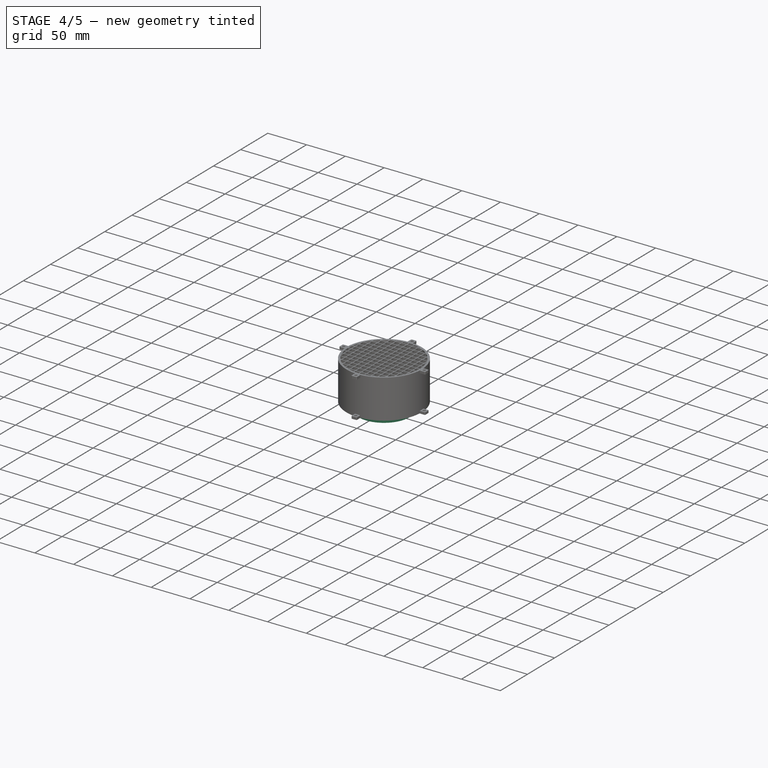
[diagram: stage 4 of 5 — iso view after this stage's code; geometry added in this stage tinted green]
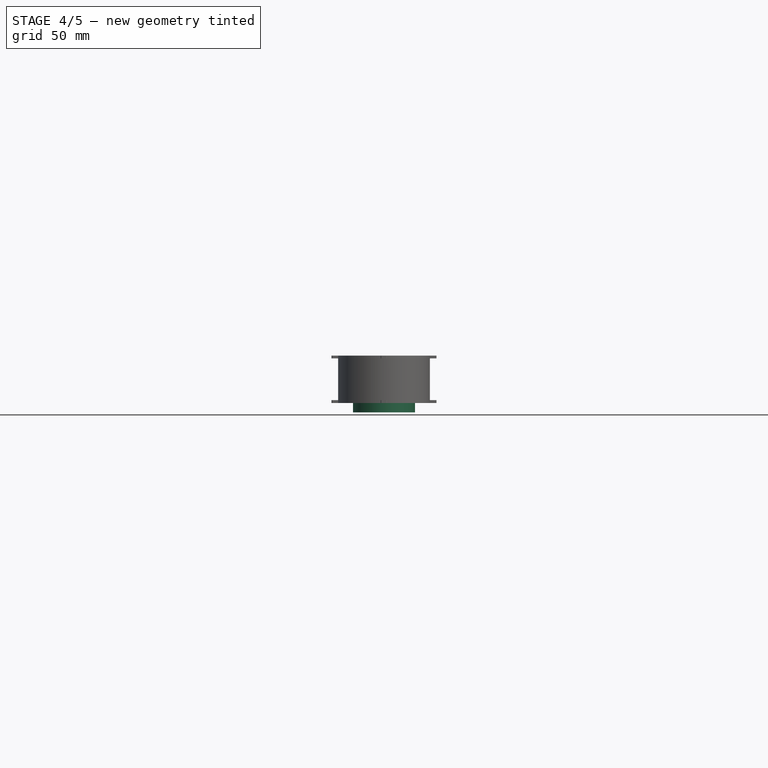
[diagram: stage 4 of 5 — front view after this stage's code; geometry added in this stage tinted green]
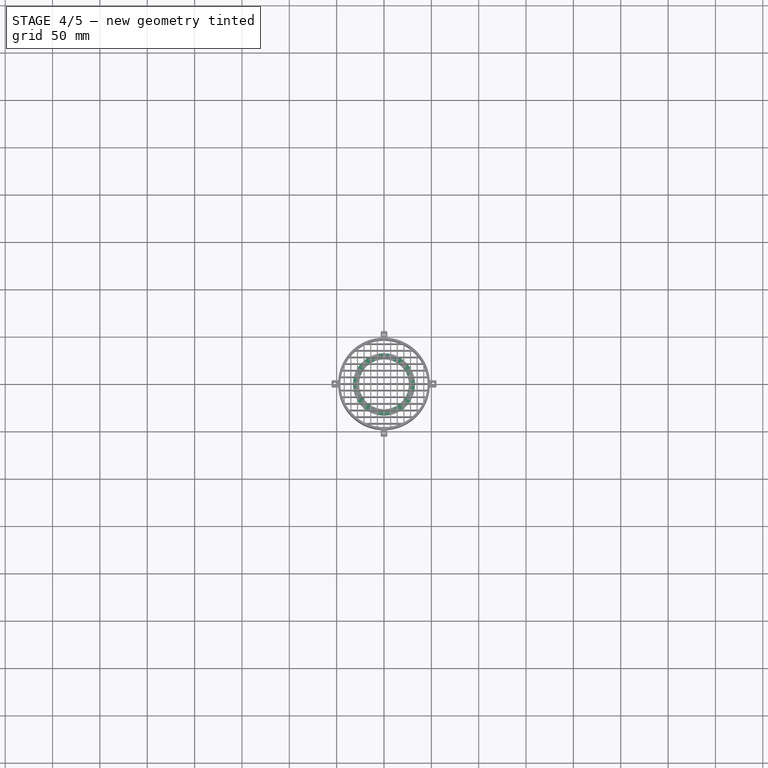
[diagram: stage 4 of 5 — top view after this stage's code; geometry added in this stage tinted green]
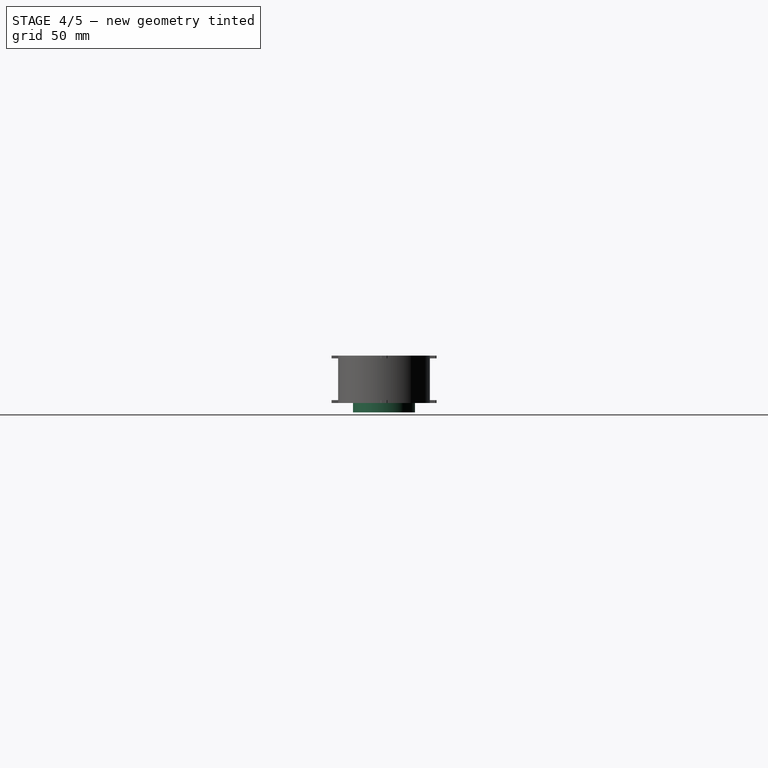
[diagram: stage 4 of 5 — right view after this stage's code; geometry added in this stage tinted green]
FEATURE [PartDesign::ShapeBinder] ShapeBinder
  Support = -> [PolarPattern001]
  TraceSupport = false
FEATURE [Sketcher::SketchObject] Sketch010
  ExternalGeometry = -> [ShapeBinder,PolarPattern003]
  FullyConstrained = true
  MapMode = 5
  Placement = pos=(-1.3e-15,1.7e-15,3) rot=(0,0,1;3.14159rad)
  Support = -> [PolarPattern003]
  sketch-geometry (9):
    g0: ArcOfCircle CenterX=-5.53e-14 CenterY=2.8412e-12 CenterZ=0 NormalX=0 NormalY=0 NormalZ=1 AngleXU=0 Radius=55.5 StartAngle=4.62512 EndAngle=4.79966
    g1: GeomPoint X=0 Y=-55.5 Z=0
    g2: LineSegment StartX=-3.5 StartY=-55.3735 StartZ=0 EndX=3.5 EndY=-55.3735 EndZ=0
    g3: LineSegment StartX=-3.5 StartY=-48.3735 StartZ=0 EndX=-3.5 EndY=-55.3735 EndZ=0
    g4: LineSegment StartX=3.5 StartY=-48.3735 StartZ=0 EndX=3.5 EndY=-55.3735 EndZ=0
    g5: LineSegment StartX=3.5 StartY=-48.3735 StartZ=0 EndX=4.22705 EndY=-48.3154 EndZ=0
    g6: LineSegment StartX=4.22705 StartY=-48.3154 StartZ=0 EndX=4.83714 EndY=-55.2888 EndZ=0
    g7: LineSegment StartX=-3.5 StartY=-48.3735 StartZ=0 EndX=-4.22705 EndY=-48.3154 EndZ=0
    g8: LineSegment StartX=-4.22705 StartY=-48.3154 StartZ=0 EndX=-4.83714 EndY=-55.2888 EndZ=0
  constraints (19):
    c: Coincident(g0,g-8)
    c: Coincident(g0,g-7)
    c: PointOnObject(g1,g-7)
    c: PointOnObject(g1,g-2)
    c: PointOnObject(g1,g0)
    c: Coincident(g2,g-4)
    c: Coincident(g2,g-5)
    c: Coincident(g3,g-3)
    c: Coincident(g3,g2)
    c: Coincident(g4,g-5)
    c: Coincident(g4,g2)
    c: Coincident(g5,g4)
    c: Coincident(g5,g-9)
    c: Coincident(g6,g5)
    c: Coincident(g6,g0)
    c: Coincident(g7,g3)
    c: Coincident(g7,g-10)
    c: Coincident(g8,g7)
    c: Coincident(g8,g0)
FEATURE [PartDesign::Pocket] Pocket003
  BaseFeature = -> PolarPattern003
  Length = 5
  Length2 = 100
  Placement = pos=(0,0,0) rot=(1,0,0;1.5708rad)
  Profile = -> Sketch010
  Type = 0
FEATURE [PartDesign::PolarPattern] PolarPattern004
  Angle = 360
  Axis = -> Z_Axis001
  BaseFeature = -> Pocket003
  Occurrences = 4
  Originals = -> [Pocket003]
  Placement = pos=(0,0,0) rot=(1,0,0;1.5708rad)
FEATURE [PartDesign::Fillet] Fillet001
  Base = -> PolarPattern004 [Edge109,Edge108]
  BaseFeature = -> PolarPattern004
  Placement = pos=(0,0,0) rot=(1,0,0;1.5708rad)
  Radius = 1
  SupportTransform = false
FEATURE [PartDesign::PolarPattern] PolarPattern006
  Angle = 360
  Axis = -> Z_Axis001
  BaseFeature = -> Fillet001
  Occurrences = 4
  Originals = -> [Fillet001]
  Placement = pos=(0,0,0) rot=(1,0,0;1.5708rad)
FEATURE [PartDesign::Chamfer] Chamfer
  Angle = 45
  Base = -> PolarPattern006 [Edge138]
  BaseFeature = -> PolarPattern006
  ChamferType = 0
  FlipDirection = false
  Placement = pos=(0,0,0) rot=(1,0,0;1.5708rad)
  Size = 1
  Size2 = 1
  SupportTransform = false
FEATURE [PartDesign::Body] Body  label="engine_mount"
  Group = -> [Sketch,Pad,Sketch001,Pad001,Sketch002,Pocket,Sketch003,Pad002,PolarPattern,Sketch004,Pocket001,PolarPattern001,Fillet,PolarPattern005,Chamfer001]
  Origin = -> Origin
  Tip = -> Chamfer001
FEATURE [PartDesign::ShapeBinder] ShapeBinder001
  Placement = pos=(0,0,0) rot=(1,0,0;1.5708rad)
  Support = -> [Chamfer]
  TraceSupport = false
FEATURE [Sketcher::SketchObject] Sketch011
  ExternalGeometry = -> [ShapeBinder001]
  FullyConstrained = true
  MapMode = 5
  Support = -> [XY_Plane003]
  sketch-geometry (2):
    g0: Circle CenterX=0 CenterY=0 CenterZ=0 NormalX=0 NormalY=0 NormalZ=1 AngleXU=0 Radius=32.75
    g1: Circle CenterX=0 CenterY=0 CenterZ=0 NormalX=0 NormalY=0 NormalZ=1 AngleXU=0 Radius=26.25
  constraints (4):
    c: Coincident(g0,g-1)
    c: Coincident(g1,g0)
    c: Tangent(g1,g-4)
    c: Tangent(g0,g-3)
FEATURE [PartDesign::Pad] Pad004
  Direction = (1,1,1)
  Length = 3
  Length2 = 100
  Profile = -> Sketch011
  Type = 0
FEATURE [Sketcher::SketchObject] Sketch012
  ExternalGeometry = -> [ShapeBinder001]
  FullyConstrained = true
  MapMode = 5
  Placement = pos=(0,0,0) rot=(1,0,0;3.14159rad)
  Support = -> [Pad004]
  sketch-geometry (2):
    g0: Circle CenterX=0 CenterY=0 CenterZ=0 NormalX=0 NormalY=0 NormalZ=1 AngleXU=0 Radius=30.25
    g1: Circle CenterX=0 CenterY=0 CenterZ=0 NormalX=0 NormalY=0 NormalZ=1 AngleXU=0 Radius=32.75
  constraints (4):
    c: Coincident(g0,g-1)
    c: Tangent(g0,g-3)
    c: Coincident(g1,g0)
    c: Tangent(g1,g-4)
FEATURE [PartDesign::Pad] Pad005
  BaseFeature = -> Pad004
  Direction = (1,1,1)
  Length = 10
  Length2 = 100
  Profile = -> Sketch012
  Type = 0
FEATURE [PartDesign::Chamfer] Chamfer002
  Angle = 45
  Base = -> Pad005 [Edge7]
  BaseFeature = -> Pad005
  ChamferType = 0
  FlipDirection = false
  Size = 1
  Size2 = 1
  SupportTransform = false
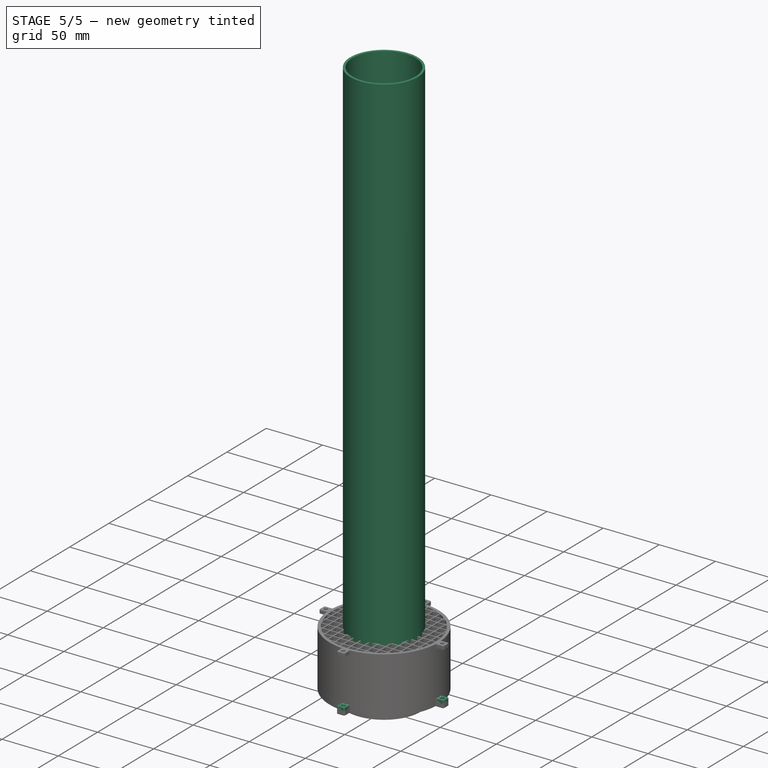
[diagram: stage 5 of 5 — iso view after this stage's code; geometry added in this stage tinted green]
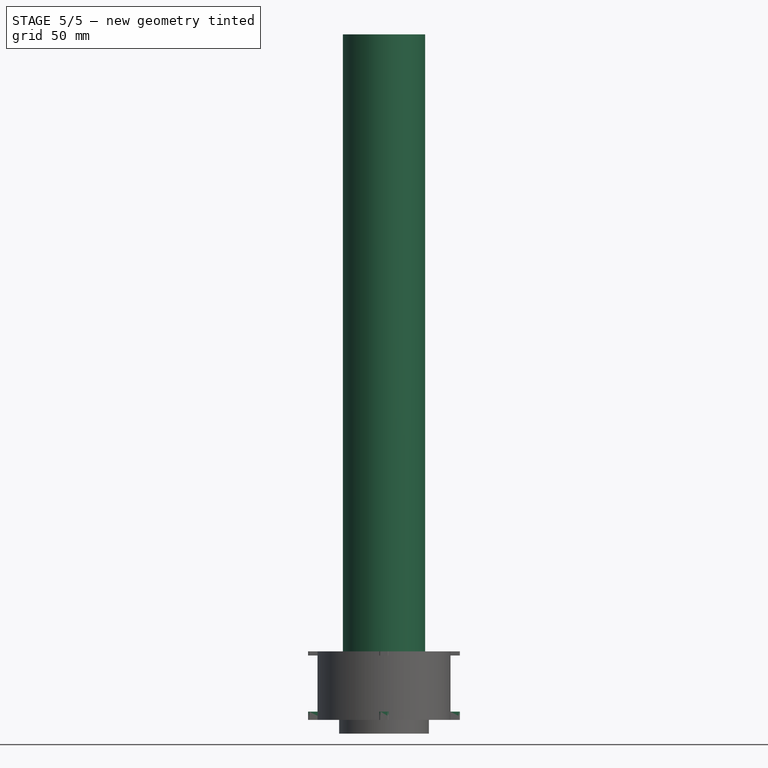
[diagram: stage 5 of 5 — front view after this stage's code; geometry added in this stage tinted green]
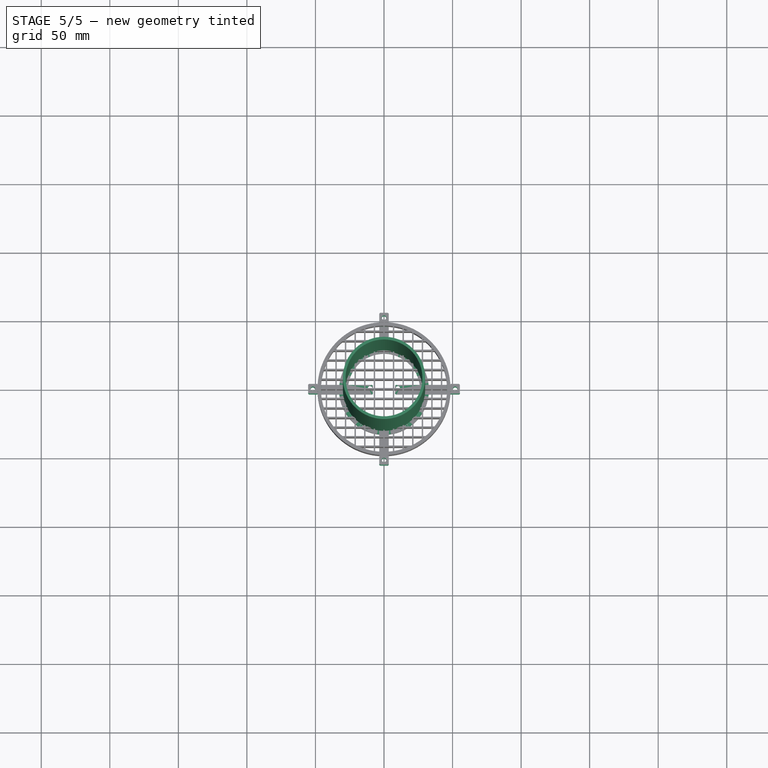
[diagram: stage 5 of 5 — top view after this stage's code; geometry added in this stage tinted green]
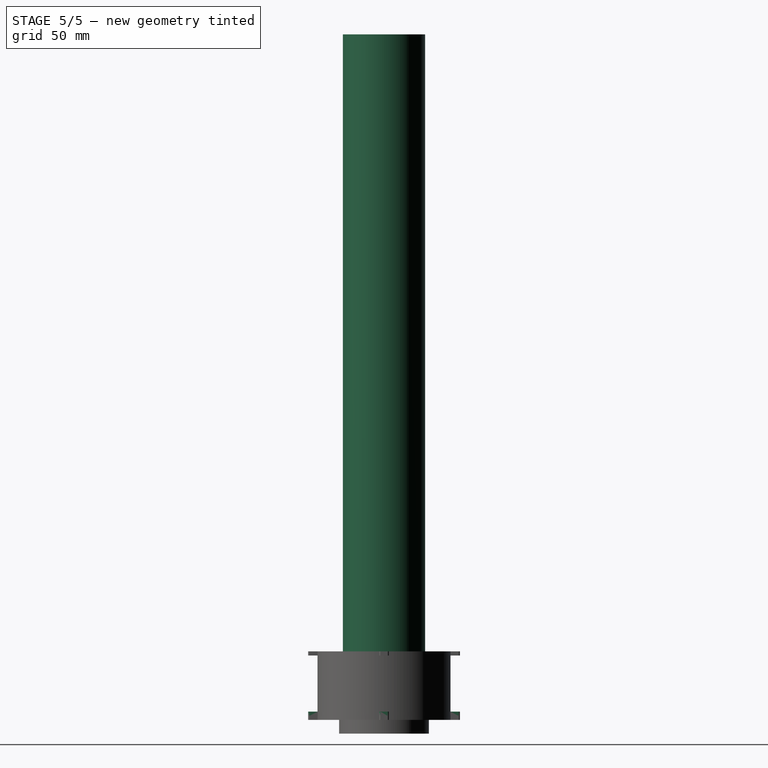
[diagram: stage 5 of 5 — right view after this stage's code; geometry added in this stage tinted green]
FEATURE [Sketcher::SketchObject] Sketch005
  FullyConstrained = true
  MapMode = 5
  Placement = pos=(0,0,0) rot=(1,0,0;1.5708rad)
  Support = -> [XZ_Plane001]
  expr: Constraints[23] = <<Params>>.CouplerTubeLipWidth
  expr: Constraints[20] = (<<Params>>.TubeOuterDiam + <<Params>>.Tolerances) / 2
  expr: Constraints[27] = <<Params>>.CouplerLenght / 3
  expr: Constraints[9] = <<Params>>.CouplerLenght
  expr: Constraints[3] = (<<Params>>.PropDiam + <<Params>>.PropTolerance) / 2
  expr: Constraints[8] = (<<Params>>.TubeOuterDiam + <<Params>>.Tolerances + <<Params>>.PropChamberWallThickness) / 2
  expr: Constraints[2] = (<<Params>>.PropDiam + <<Params>>.PropTolerance + <<Params>>.PropChamberWallThickness) / 2
  sketch-geometry (12):
    g0: LineSegment StartX=0 StartY=0 StartZ=0 EndX=-46 EndY=0 EndZ=0
    g1: LineSegment StartX=0 StartY=0 StartZ=0 EndX=-48.5 EndY=0 EndZ=0
    g2: LineSegment StartX=0 StartY=70 StartZ=0 EndX=-32.75 EndY=70 EndZ=0
    g3: LineSegment StartX=0 StartY=0 StartZ=0 EndX=0 EndY=70 EndZ=0
    g4: LineSegment StartX=-32.75 StartY=70 StartZ=0 EndX=-48.5 EndY=0 EndZ=0
    g5: LineSegment StartX=-32.75 StartY=70 StartZ=0 EndX=-30.25 EndY=70 EndZ=0
    g6: LineSegment StartX=-48.5 StartY=0 StartZ=0 EndX=-46 EndY=0 EndZ=0
    g7: LineSegment StartX=-30.25 StartY=70 StartZ=0 EndX=-46 EndY=0 EndZ=0
    g8: LineSegment StartX=0 StartY=70 StartZ=0 EndX=-30.25 EndY=70 EndZ=0
    g9: LineSegment StartX=-30.25 StartY=70 StartZ=0 EndX=-26.25 EndY=70 EndZ=0
    g10: LineSegment StartX=-26.25 StartY=70 StartZ=0 EndX=-35.1071 EndY=48.413 EndZ=0
    g11: LineSegment StartX=-35.1071 StartY=48.413 StartZ=0 EndX=-46 EndY=0 EndZ=0
  constraints (31):
    c: Coincident(g0,g-1)
    c: Coincident(g1,g-1)
    c: Distance(g1) = 48.5
    c: Distance(g0) = 46
    c: PointOnObject(g0,g-1)
    c: PointOnObject(g1,g-1)
    c: Horizontal(g2)
    c: PointOnObject(g3,g-2)
    c: Distance(g2) = 32.75
    c: Distance(g3) = 70
    c: Coincident(g3,g-1)
    c: Coincident(g2,g3)
    c: Coincident(g4,g2)
    c: Coincident(g4,g1)
    c: Coincident(g5,g4)
    c: Coincident(g6,g4)
    c: PointOnObject(g5,g2)
    c: Coincident(g7,g5)
    c: Coincident(g7,g6)
    c: Coincident(g8,g2)
    c: Distance(g8) = 30.25
    c: Coincident(g5,g8)
    c: Coincident(g9,g5)
    c: Distance(g9) = 4
    c: PointOnObject(g9,g2)
    c: Coincident(g10,g9)
    c: PointOnObject(g10,g7)
    c: Distance(g10) = 23.3333
    c: Coincident(g6,g0)
    c: Coincident(g11,g10)
    c: Coincident(g11,g6)
FEATURE [Sketcher::SketchObject] Sketch006
  FullyConstrained = true
  MapMode = 5
  Support = -> [XY_Plane002]
  expr: Constraints[3] = <<Params>>.TubeOuterDiam
  expr: Constraints[2] = <<Params>>.TubeInnerDiam
  sketch-geometry (2):
    g0: Circle CenterX=0 CenterY=0 CenterZ=0 NormalX=0 NormalY=0 NormalZ=1 AngleXU=0 Radius=28
    g1: Circle CenterX=0 CenterY=0 CenterZ=0 NormalX=0 NormalY=0 NormalZ=1 AngleXU=0 Radius=30
  constraints (4):
    c: Coincident(g0,g-1)
    c: Coincident(g1,g0)
    c: Diameter(g0) = 56
    c: Diameter(g1) = 60
FEATURE [Spreadsheet::Sheet] Spreadsheet  label="Params"
  cells = A1=Tolerances; B1(Tolerances)=0.5; A3=Tube Inner Diam; B3(TubeInnerDiam)=56; A4=Tube Outer Diam; B4(TubeOuterDiam)=60; A5=Tube Lenght; B5(TubeLenght)=500; A7=Prop Tolerance; B7(PropTolerance)=8; A9=Prop Diam; B9(PropDiam)=84; A11=Prop Chamber Wall Thickness; B11(PropChamberWallThickness)=5; A12=Prop Chamber Height; B12(PropChamberHeight)=70; A14=Coupler Lenght; B14(CouplerLenght)=70; A15=Coupler Tube Holding Rim Height; B15(CouplerTubeHoldingRimHeight)=10; A16=Coupler Tube Lip Width; B16(CouplerTubeLipWidth)=4
FEATURE [PartDesign::Pad] Pad003
  Direction = (1,1,1)
  Length = 500
  Length2 = 100
  Profile = -> Sketch006
  Type = 0
  expr: Length = <<Params>>.TubeLenght
FEATURE [PartDesign::ShapeBinder] ShapeBinder002
  Support = -> [Chamfer001]
  TraceSupport = false
FEATURE [Sketcher::SketchObject] Sketch013
  ExternalGeometry = -> [ShapeBinder002,Chamfer002]
  FullyConstrained = true
  MapMode = 5
  Placement = pos=(0,0,3) rot=(0,0,1;0rad)
  Support = -> [Chamfer002]
  sketch-geometry (72):
    g0: ArcOfCircle CenterX=-1e-16 CenterY=0 CenterZ=0 NormalX=0 NormalY=0 NormalZ=1 AngleXU=0 Radius=48.5 StartAngle=1.64302 EndAngle=3.06936
    g1: ArcOfCircle CenterX=-1e-16 CenterY=0 CenterZ=0 NormalX=0 NormalY=0 NormalZ=1 AngleXU=0 Radius=48.5 StartAngle=0.0722277 EndAngle=1.49857
    g2: ArcOfCircle CenterX=-1e-16 CenterY=0 CenterZ=0 NormalX=0 NormalY=0 NormalZ=1 AngleXU=0 Radius=48.5 StartAngle=4.78462 EndAngle=6.21096
    g3: ArcOfCircle CenterX=-1e-16 CenterY=0 CenterZ=0 NormalX=0 NormalY=0 NormalZ=1 AngleXU=0 Radius=48.5 StartAngle=3.21382 EndAngle=4.64016
    g4: LineSegment StartX=-3.5 StartY=48.3735 StartZ=0 EndX=-3.5 EndY=-48.3735 EndZ=0
    g5: LineSegment StartX=3.5 StartY=48.3735 StartZ=0 EndX=3.5 EndY=-48.3735 EndZ=0
    g6: LineSegment StartX=-48.3735 StartY=3.5 StartZ=0 EndX=48.3735 EndY=3.5 EndZ=0
    g7: LineSegment StartX=48.3735 StartY=-3.5 StartZ=0 EndX=-48.3735 EndY=-3.5 EndZ=0
    g8: GeomPoint X=-45.8667 Y=3.5 Z=0
    g9: GeomPoint X=-45.8667 Y=-3.5 Z=0
    g10: GeomPoint X=-3.5 Y=-45.8667 Z=0
    g11: GeomPoint X=3.5 Y=-45.8667 Z=0
    g12: GeomPoint X=45.8667 Y=-3.5 Z=0
    g13: GeomPoint X=45.8667 Y=3.5 Z=0
    g14: GeomPoint X=3.5 Y=45.8667 Z=0
    g15: GeomPoint X=-3.5 Y=45.8667 Z=0
    g16: ArcOfCircle CenterX=-1e-16 CenterY=0 CenterZ=0 NormalX=0 NormalY=0 NormalZ=1 AngleXU=0 Radius=46 StartAngle=1.64696 EndAngle=3.06543
    g17: ArcOfCircle CenterX=-1e-16 CenterY=0 CenterZ=0 NormalX=0 NormalY=0 NormalZ=1 AngleXU=0 Radius=46 StartAngle=3.21775 EndAngle=4.63623
    g18: ArcOfCircle CenterX=-1e-16 CenterY=0 CenterZ=0 NormalX=0 NormalY=0 NormalZ=1 AngleXU=0 Radius=46 StartAngle=4.78855 EndAngle=6.20702
    g19: ArcOfCircle CenterX=-1e-16 CenterY=0 CenterZ=0 NormalX=0 NormalY=0 NormalZ=1 AngleXU=0 Radius=46 StartAngle=0.0761606 EndAngle=1.49464
    g20: GeomPoint X=-32.5624 Y=-3.5 Z=0
    g21: GeomPoint X=-32.5624 Y=3.5 Z=0
    g22: GeomPoint X=-3.5 Y=-32.5624 Z=0
    g23: GeomPoint X=3.5 Y=-32.5624 Z=0
    g24: GeomPoint X=32.5624 Y=-3.5 Z=0
    g25: GeomPoint X=32.5624 Y=3.5 Z=0
    g26: GeomPoint X=3.5 Y=32.5624 Z=0
    g27: GeomPoint X=-3.5 Y=32.5624 Z=0
    g28: GeomPoint X=-26.0156 Y=3.5 Z=0
    g29: GeomPoint X=-26.0156 Y=-3.5 Z=0
    g30: GeomPoint X=26.0156 Y=3.5 Z=0
    g31: GeomPoint X=26.0156 Y=-3.5 Z=0
    g32: ArcOfCircle CenterX=-54.3735 CenterY=2.5 CenterZ=0 NormalX=0 NormalY=0 NormalZ=1 AngleXU=0 Radius=1 StartAngle=1.5708 EndAngle=3.14159
    g33: ArcOfCircle CenterX=-54.3735 CenterY=-2.5 CenterZ=0 NormalX=0 NormalY=0 NormalZ=1 AngleXU=0 Radius=1 StartAngle=3.14159 EndAngle=4.71239
    g34: LineSegment StartX=-55.3735 StartY=2.5 StartZ=0 EndX=-55.3735 EndY=-2.5 EndZ=0
    g35: LineSegment StartX=-54.3735 StartY=-3.5 StartZ=0 EndX=-48.3735 EndY=-3.5 EndZ=0
    g36: LineSegment StartX=-54.3735 StartY=3.5 StartZ=0 EndX=-48.3735 EndY=3.5 EndZ=0
    g37: LineSegment StartX=-45.8667 StartY=-3.5 StartZ=0 EndX=-32.5624 EndY=-3.5 EndZ=0
    g38: LineSegment StartX=-45.8667 StartY=3.5 StartZ=0 EndX=-32.5624 EndY=3.5 EndZ=0
    g39: LineSegment StartX=-3.5 StartY=45.8667 StartZ=0 EndX=-3.5 EndY=32.5624 EndZ=0
    g40: LineSegment StartX=3.5 StartY=45.8667 StartZ=0 EndX=3.5 EndY=32.5624 EndZ=0
    g41: LineSegment StartX=-3.5 StartY=-45.8667 StartZ=0 EndX=-3.5 EndY=-32.5624 EndZ=0
    g42: LineSegment StartX=3.5 StartY=-32.5624 StartZ=0 EndX=3.5 EndY=-45.8667 EndZ=0
    g43: LineSegment StartX=3.5 StartY=-48.3735 StartZ=0 EndX=3.5 EndY=-54.3735 EndZ=0
    g44: LineSegment StartX=-2.5 StartY=-55.3735 StartZ=0 EndX=2.5 EndY=-55.3735 EndZ=0
    g45: LineSegment StartX=-3.5 StartY=-54.3735 StartZ=0 EndX=-3.5 EndY=-48.3735 EndZ=0
    g46: ArcOfCircle CenterX=-2.5 CenterY=-54.3735 CenterZ=0 NormalX=0 NormalY=0 NormalZ=1 AngleXU=0 Radius=1 StartAngle=3.14159 EndAngle=4.71239
    g47: ArcOfCircle CenterX=2.5 CenterY=-54.3735 CenterZ=0 NormalX=0 NormalY=0 NormalZ=1 AngleXU=0 Radius=1 StartAngle=4.71239 EndAngle=6.28319
    g48: Circle CenterX=-4.1e-15 CenterY=-51.8735 CenterZ=0 NormalX=0 NormalY=0 NormalZ=1 AngleXU=0 Radius=1.65
    g49: Circle CenterX=-51.8735 CenterY=4.1e-15 CenterZ=0 NormalX=0 NormalY=0 NormalZ=1 AngleXU=0 Radius=1.65
    g50: LineSegment StartX=45.8667 StartY=-3.5 StartZ=0 EndX=32.5624 EndY=-3.5 EndZ=0
    g51: LineSegment StartX=45.8667 StartY=3.5 StartZ=0 EndX=32.5624 EndY=3.5 EndZ=0
    g52: LineSegment StartX=48.3735 StartY=-3.5 StartZ=0 EndX=54.3735 EndY=-3.5 EndZ=0
    g53: LineSegment StartX=55.3735 StartY=-2.5 StartZ=0 EndX=55.3735 EndY=2.5 EndZ=0
    g54: LineSegment StartX=54.3735 StartY=3.5 StartZ=0 EndX=48.3735 EndY=3.5 EndZ=0
    g55: ArcOfCircle CenterX=54.3735 CenterY=2.5 CenterZ=0 NormalX=0 NormalY=0 NormalZ=1 AngleXU=0 Radius=1 StartAngle=1.2e-14 EndAngle=1.5708
    g56: ArcOfCircle CenterX=54.3735 CenterY=-2.5 CenterZ=0 NormalX=0 NormalY=0 NormalZ=1 AngleXU=0 Radius=1 StartAngle=4.71239 EndAngle=6.28319
    g57: Circle CenterX=51.8735 CenterY=0 CenterZ=0 NormalX=0 NormalY=0 NormalZ=1 AngleXU=0 Radius=1.65
    g58: LineSegment StartX=-3.5 StartY=54.3735 StartZ=0 EndX=-3.5 EndY=48.3735 EndZ=0
    g59: LineSegment StartX=3.5 StartY=48.3735 StartZ=0 EndX=3.5 EndY=54.3735 EndZ=0
    g60: LineSegment StartX=2.5 StartY=55.3735 StartZ=0 EndX=-2.5 EndY=55.3735 EndZ=0
    g61: ArcOfCircle CenterX=-2.5 CenterY=54.3735 CenterZ=0 NormalX=0 NormalY=0 NormalZ=1 AngleXU=0 Radius=1 StartAngle=1.5708 EndAngle=3.14159
    g62: ArcOfCircle CenterX=2.5 CenterY=54.3735 CenterZ=0 NormalX=0 NormalY=0 NormalZ=1 AngleXU=0 Radius=1 StartAngle=0 EndAngle=1.5708
    g63: Circle CenterX=0 CenterY=51.8735 CenterZ=0 NormalX=0 NormalY=0 NormalZ=1 AngleXU=0 Radius=1.65
    g64: ArcOfCircle CenterX=-1e-16 CenterY=0 CenterZ=0 NormalX=0 NormalY=0 NormalZ=1 AngleXU=0 Radius=32.75 StartAngle=1.67787 EndAngle=3.03452
    g65: ArcOfCircle CenterX=-1e-16 CenterY=0 CenterZ=0 NormalX=0 NormalY=0 NormalZ=1 AngleXU=0 Radius=32.75 StartAngle=0.107075 EndAngle=1.46372
    g66: ArcOfCircle CenterX=-1e-16 CenterY=0 CenterZ=0 NormalX=0 NormalY=0 NormalZ=1 AngleXU=0 Radius=32.75 StartAngle=4.81946 EndAngle=6.17611
    g67: ArcOfCircle CenterX=-1e-16 CenterY=0 CenterZ=0 NormalX=0 NormalY=0 NormalZ=1 AngleXU=0 Radius=32.75 StartAngle=3.24867 EndAngle=4.60531
    g68: ArcOfCircle CenterX=-1e-16 CenterY=0 CenterZ=0 NormalX=0 NormalY=0 NormalZ=1 AngleXU=0 Radius=26.25 StartAngle=0.133732 EndAngle=3.00786
    g69: ArcOfCircle CenterX=-1e-16 CenterY=0 CenterZ=0 NormalX=0 NormalY=0 NormalZ=1 AngleXU=0 Radius=26.25 StartAngle=3.27532 EndAngle=6.14945
    g70: LineSegment StartX=-26.0156 StartY=3.5 StartZ=0 EndX=26.0156 EndY=3.5 EndZ=0
    g71: LineSegment StartX=26.0156 StartY=-3.5 StartZ=0 EndX=-26.0156 EndY=-3.5 EndZ=0
  constraints (167):
    c: Coincident(g0,g-1)
    c: Coincident(g0,g-5)
    c: Coincident(g0,g-24)
    c: Coincident(g1,g0)
    c: Coincident(g1,g-11)
    c: Coincident(g1,g-12)
    c: Coincident(g2,g0)
    c: Coincident(g2,g-17)
    c: Coincident(g2,g-30)
    c: Coincident(g3,g0)
    c: Coincident(g3,g-25)
    c: Coincident(g3,g-19)
    c: Coincident(g4,g0)
    c: Coincident(g4,g3)
    c: Coincident(g5,g1)
    c: Coincident(g5,g2)
    c: Coincident(g6,g0)
    c: Coincident(g6,g1)
    c: Coincident(g7,g2)
    c: Coincident(g7,g3)
    c: PointOnObject(g8,g-4)
    c: PointOnObject(g9,g-4)
    c: PointOnObject(g10,g-4)
    c: PointOnObject(g11,g-4)
    c: PointOnObject(g12,g-4)
    c: PointOnObject(g13,g-4)
    c: PointOnObject(g14,g-4)
    c: PointOnObject(g15,g-4)
    c: PointOnObject(g15,g4)
    c: PointOnObject(g14,g5)
    c: PointOnObject(g13,g6)
    c: PointOnObject(g12,g7)
    c: PointOnObject(g11,g5)
    c: PointOnObject(g10,g4)
    c: PointOnObject(g9,g7)
    c: PointOnObject(g8,g6)
    c: Coincident(g16,g0)
    c: Coincident(g16,g15)
    c: PointOnObject(g16,g6)
    c: Coincident(g17,g0)
    c: Coincident(g17,g9)
    c: Coincident(g17,g10)
    c: Coincident(g18,g0)
    c: Coincident(g18,g11)
    c: Coincident(g18,g12)
    c: Coincident(g19,g0)
    c: Coincident(g19,g13)
    c: Coincident(g19,g14)
    c: PointOnObject(g20,g-31)
    c: PointOnObject(g21,g-31)
    c: PointOnObject(g22,g-31)
    c: PointOnObject(g23,g-31)
    c: PointOnObject(g24,g-31)
    c: PointOnObject(g25,g-31)
    c: PointOnObject(g26,g-31)
    c: PointOnObject(g27,g-31)
    c: PointOnObject(g28,g-32)
    c: PointOnObject(g29,g-32)
    c: PointOnObject(g30,g-32)
    c: PointOnObject(g31,g-32)
    c: PointOnObject(g27,g4)
    c: PointOnObject(g26,g5)
    c: PointOnObject(g30,g6)
    c: PointOnObject(g31,g7)
    c: PointOnObject(g25,g6)
    c: PointOnObject(g24,g7)
    c: PointOnObject(g23,g5)
    c: PointOnObject(g22,g4)
    c: PointOnObject(g29,g7)
    c: PointOnObject(g28,g6)
    c: PointOnObject(g21,g6)
    c: PointOnObject(g20,g7)
    c: Coincident(g32,g-23)
    c: Coincident(g32,g-24)
    c: Coincident(g32,g-23)
    c: Coincident(g33,g-20)
    c: Coincident(g33,g-22)
    c: Coincident(g33,g-20)
    c: Coincident(g34,g32)
    c: Coincident(g34,g33)
    c: Coincident(g35,g33)
    c: Coincident(g35,g3)
    c: Coincident(g36,g32)
    c: Coincident(g36,g0)
    c: Coincident(g37,g17)
    c: Coincident(g37,g20)
    c: Coincident(g38,g16)
    c: Coincident(g38,g21)
    c: Coincident(g39,g16)
    c: Coincident(g39,g27)
    c: Coincident(g40,g19)
    c: Coincident(g40,g26)
    c: Coincident(g41,g17)
    c: Coincident(g41,g22)
    c: Coincident(g42,g23)
    c: Coincident(g42,g18)
    c: Coincident(g43,g2)
    c: Coincident(g43,g-30)
    c: Coincident(g44,g-28)
    c: Coincident(g44,g-29)
    c: Coincident(g45,g-26)
    c: Coincident(g45,g3)
    c: Coincident(g46,g-26)
    c: Coincident(g46,g45)
    c: Coincident(g46,g44)
    c: Coincident(g47,g-29)
    c: Coincident(g47,g44)
    c: Coincident(g47,g43)
    c: Coincident(g48,g-33)
    c: Tangent(g48,g-33)
    c: Coincident(g49,g-21)
    c: Equal(g49,g-21)
    c: Coincident(g50,g18)
    c: Coincident(g50,g24)
    c: Coincident(g51,g19)
    c: Coincident(g51,g25)
    c: Coincident(g52,g2)
    c: Coincident(g52,g-15)
    c: Tangent(g52,g-19)
    c: Coincident(g53,g-16)
    c: Coincident(g53,g-16)
    c: Coincident(g54,g-12)
    c: Coincident(g54,g1)
    c: Coincident(g55,g-34)
    c: Coincident(g55,g54)
    c: Coincident(g55,g53)
    c: Coincident(g56,g-15)
    c: Coincident(g56,g53)
    c: Coincident(g56,g52)
    c: Coincident(g57,g-14)
    c: Equal(g-14,g57)
    c: Coincident(g58,g-6)
    c: Coincident(g58,g0)
    c: Coincident(g59,g1)
    c: Coincident(g59,g-10)
    c: Coincident(g60,g-9)
    c: Coincident(g60,g-8)
    c: Coincident(g61,g-6)
    c: Coincident(g61,g60)
    c: Coincident(g61,g58)
    c: Coincident(g62,g-9)
    c: Coincident(g62,g60)
    c: Coincident(g62,g59)
    c: Coincident(g63,g-7)
    c: Equal(g-7,g63)
    c: Coincident(g64,g0)
    c: Coincident(g64,g38)
    c: Coincident(g64,g39)
    c: Coincident(g65,g0)
    c: Coincident(g65,g40)
    c: Coincident(g65,g51)
    c: Coincident(g66,g0)
    c: Coincident(g66,g50)
    c: Coincident(g66,g42)
    c: Coincident(g67,g0)
    c: Coincident(g67,g41)
    c: Coincident(g67,g37)
    c: Coincident(g68,g0)
    c: Coincident(g68,g28)
    c: Coincident(g68,g30)
    c: Coincident(g69,g0)
    c: Coincident(g69,g31)
    c: Coincident(g69,g29)
    c: Coincident(g70,g68)
    c: Coincident(g70,g68)
    c: Coincident(g71,g69)
    c: Coincident(g71,g69)
FEATURE [PartDesign::Pad] Pad006
  BaseFeature = -> Chamfer002
  Direction = (1,1,1)
  Length = 3
  Length2 = 100
  Profile = -> Sketch013
  Type = 0
FEATURE [Sketcher::SketchObject] Sketch014
  ExternalGeometry = -> [Pad006]
  FullyConstrained = true
  MapMode = 5
  Placement = pos=(0,0,3) rot=(1,0,0;3.14159rad)
  Support = -> [Pad006]
  sketch-geometry (4):
    g0: LineSegment StartX=-8 StartY=-3.5 StartZ=0 EndX=8 EndY=-3.5 EndZ=0
    g1: LineSegment StartX=8 StartY=-3.5 StartZ=0 EndX=8 EndY=3.5 EndZ=0
    g2: LineSegment StartX=8 StartY=3.5 StartZ=0 EndX=-8 EndY=3.5 EndZ=0
    g3: LineSegment StartX=-8 StartY=3.5 StartZ=0 EndX=-8 EndY=-3.5 EndZ=0
  constraints (11):
    c: Coincident(g0,g1)
    c: Coincident(g1,g2)
    c: Coincident(g2,g3)
    c: Coincident(g3,g0)
    c: Horizontal(g0)
    c: Vertical(g1)
    c: Vertical(g3)
    c: PointOnObject(g0,g-4)
    c: PointOnObject(g1,g-3)
    c: Distance(g2) = 16
    c: Symmetric(g1,g2,g-2)
FEATURE [PartDesign::Pocket] Pocket004
  BaseFeature = -> Pad006
  Length = 5
  Length2 = 100
  Profile = -> Sketch014
  Type = 0
FEATURE [Sketcher::SketchObject] Sketch015
  ExternalGeometry = -> [Pocket004]
  FullyConstrained = true
  MapMode = 5
  Placement = pos=(0,0,3) rot=(1,0,0;3.14159rad)
  Support = -> [Pocket004]
  sketch-geometry (4):
    g0: LineSegment StartX=-8 StartY=-1 StartZ=0 EndX=-8.5 EndY=-1 EndZ=0
    g1: Circle CenterX=-10.15 CenterY=-1 CenterZ=0 NormalX=0 NormalY=0 NormalZ=1 AngleXU=0 Radius=1.65
    g2: LineSegment StartX=-10.15 StartY=-1 StartZ=0 EndX=-8.5 EndY=-1 EndZ=0
    g3: LineSegment StartX=-8 StartY=-1 StartZ=0 EndX=-8 EndY=0 EndZ=0
  constraints (12):
    c: Distance(g0) = 0.5
    c: Diameter(g1) = 3.3
    c: Perpendicular(g-3,g0)
    c: Coincident(g2,g1)
    c: Coincident(g2,g0)
    c: Perpendicular(g-3,g2)
    c: PointOnObject(g0,g1)
    c: PointOnObject(g0,g-3)
    c: Coincident(g3,g0)
    c: PointOnObject(g3,g-1)
    c: PointOnObject(g3,g-3)
    c: Distance(g3) = 1
FEATURE [PartDesign::Pocket] Pocket005
  BaseFeature = -> Pocket004
  Length = 5
  Length2 = 100
  Profile = -> Sketch015
  Type = 0
FEATURE [PartDesign::Mirrored] Mirrored
  BaseFeature = -> Pocket005
  MirrorPlane = -> Sketch015 [V_Axis]
  Originals = -> [Pocket005]
FEATURE [PartDesign::Fillet] Fillet002
  Base = -> Mirrored [Edge179,Edge180]
  BaseFeature = -> Mirrored
  Radius = 1
  SupportTransform = false
FEATURE [PartDesign::Fillet] Fillet003
  Base = -> Fillet002 [Edge71,Edge67]
  BaseFeature = -> Fillet002
  Radius = 1
  SupportTransform = false
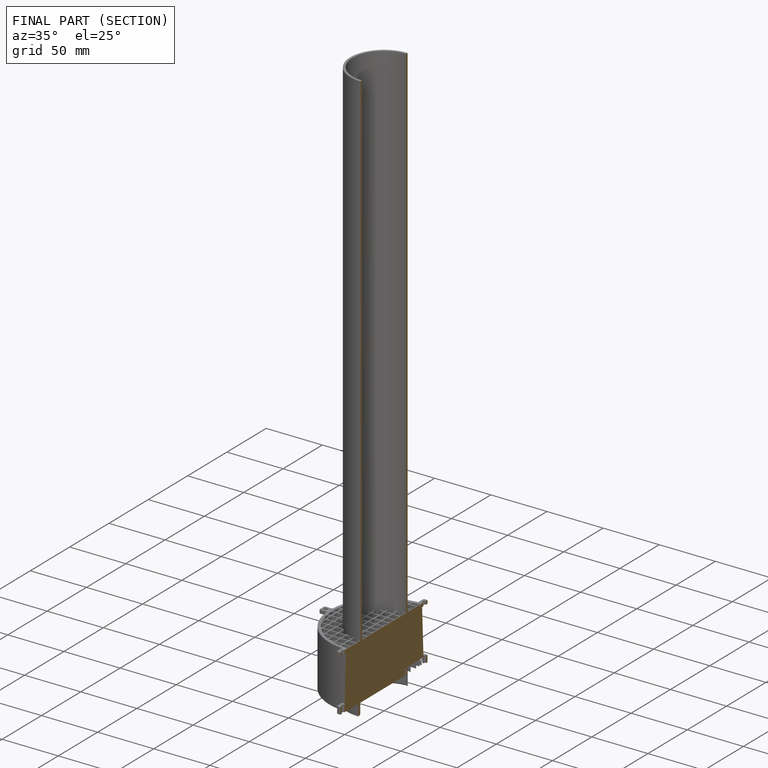
[diagram: finished part — half-section view (interior)]
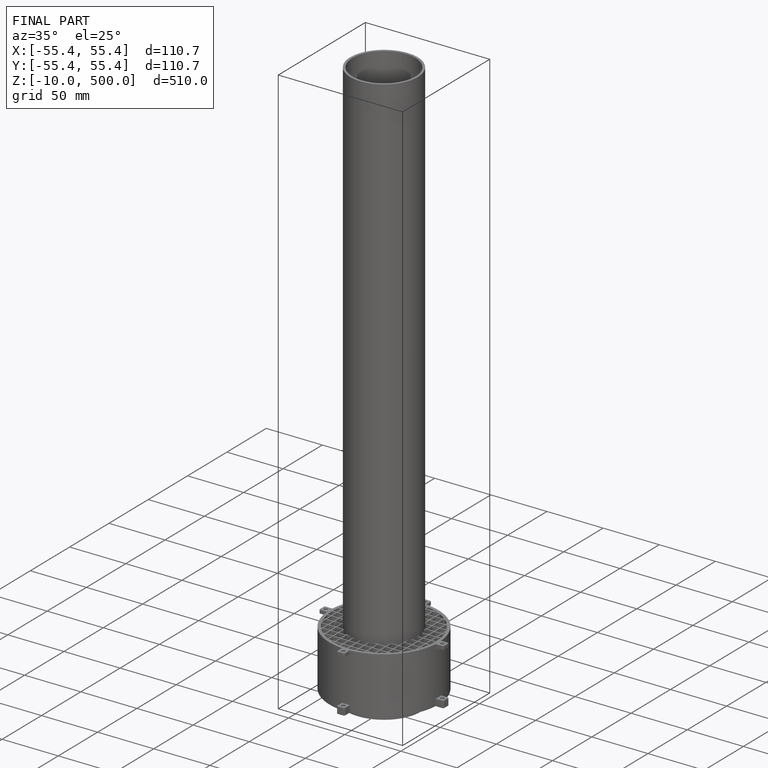
[diagram: finished part — iso view with bounding-box wireframe]
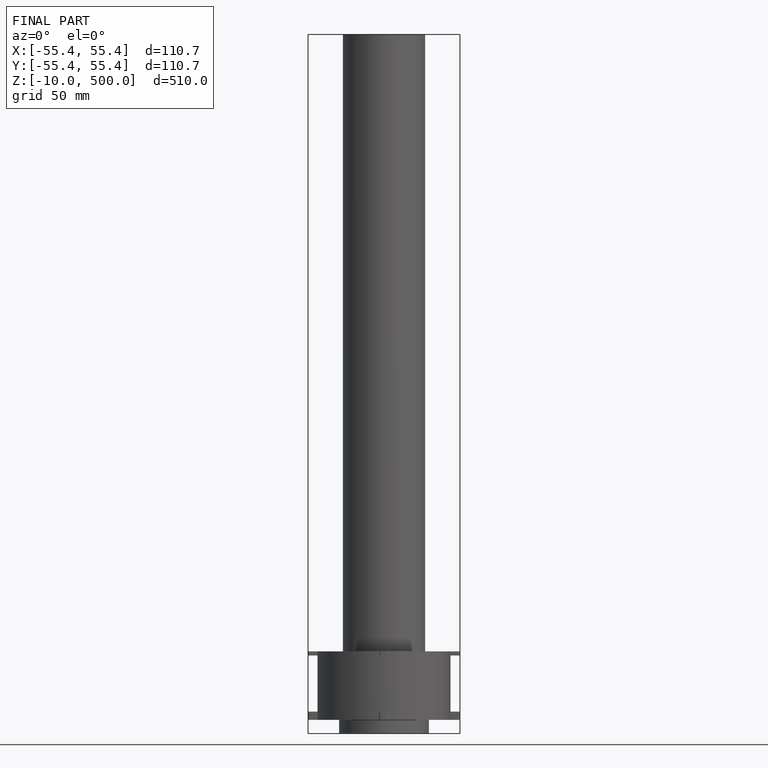
[diagram: finished part — front view with bounding-box wireframe]
